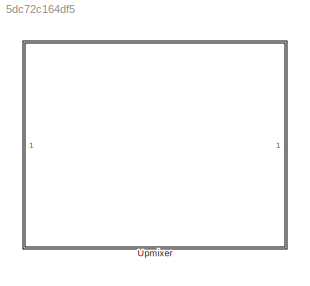
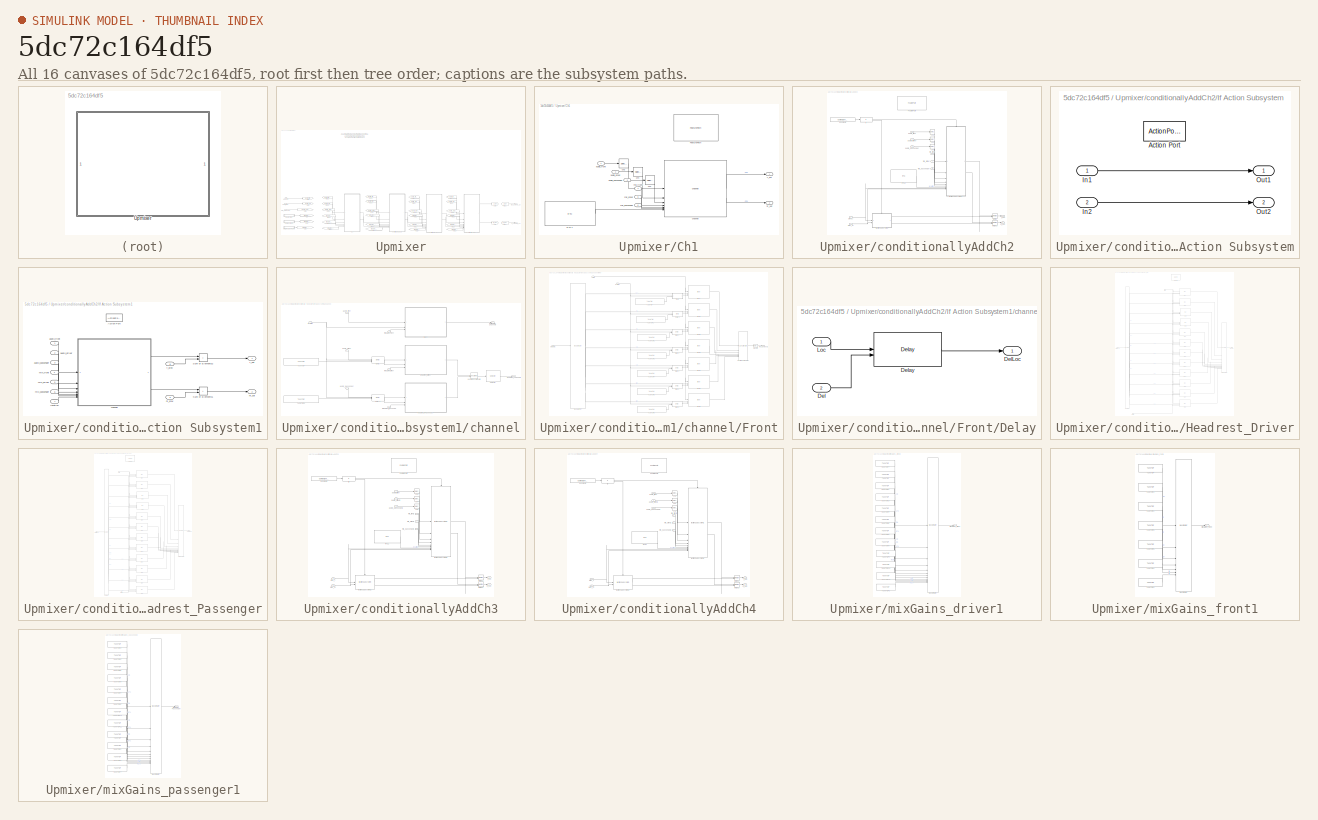
[diagram: thumbnail index - all 16 canvases of the model, root first then tree order]
MODEL slx_5dc72c164df5
KIND library
CONFIG AbsTol = auto
CONFIG EnableMultiTasking = off
CONFIG FixedStep = auto
CONFIG MaxStep = auto
CONFIG MinStep = auto
CONFIG RelTol = 1e-3
CONFIG SampleTimeConstraint = Unconstrained
CONFIG SolverName = VariableStepAuto
CONFIG StartTime = 0.0
CONFIG StopTime = 10.0
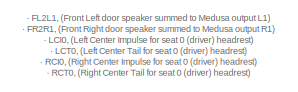
[diagram: Upmixer - part 1/4, top left region]
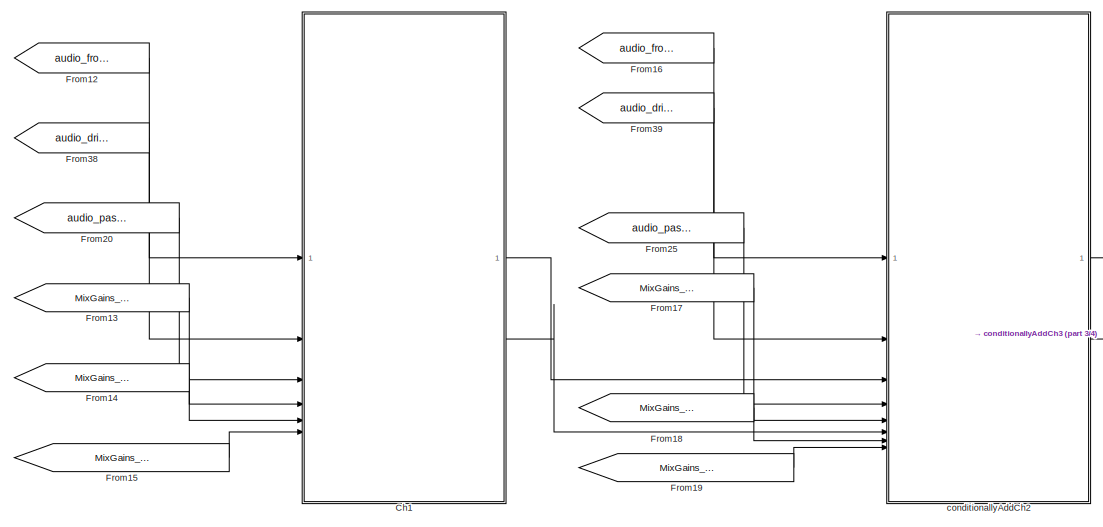
[diagram: Upmixer - part 2/4, bottom center region]
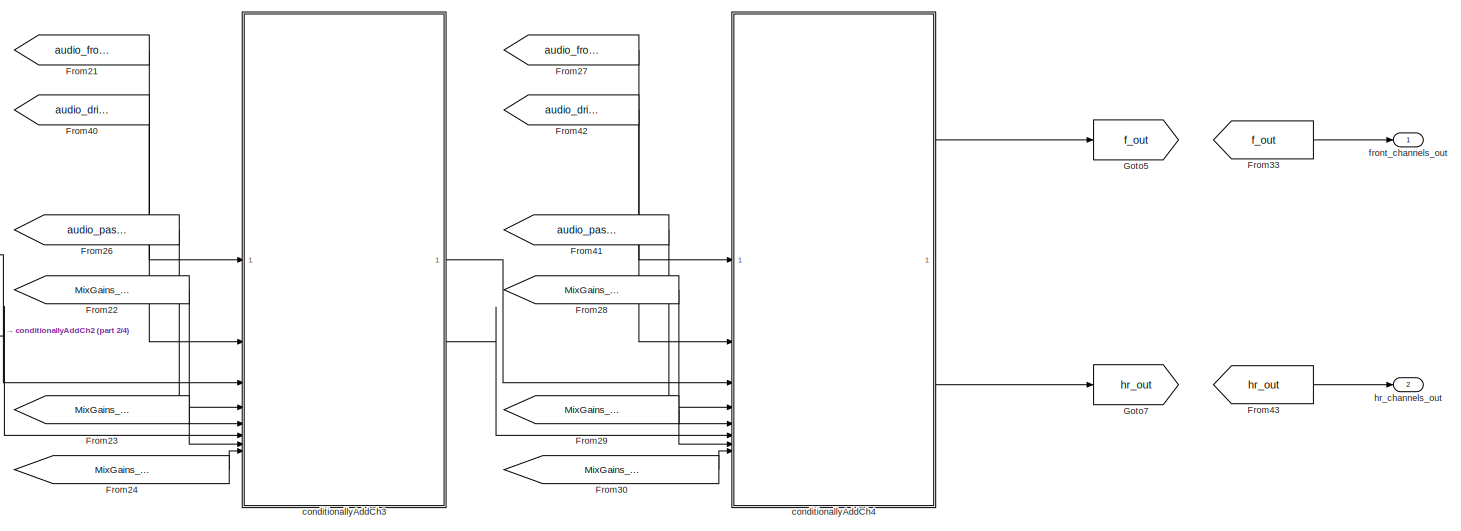
[diagram: Upmixer - part 3/4, bottom right region]
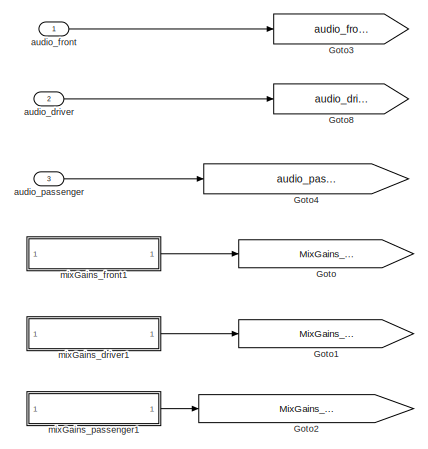
[diagram: Upmixer - part 4/4, bottom left region]
BLOCK [SubSystem] Upmixer
  InitFcn = upmixer.front_peripheral_channel_count = min(upmixer.front_peripheral_channel_count, 7);\nupmixer.front_peripheral_channel_count = max(upmixer.front_peripheral_channel_count, 2);\nupmixer.headrest_count = min(upmixer.headrest_count, 2);\nupmixer.headrest_count = max(upmixer.headrest_count, 1);
BLOCK [SubSystem] Upmixer/Ch1
BLOCK [Reference] Upmixer/Ch1/FeaturePath  REF=FeaturePath/FeaturePath
  SourceBlock = FeaturePath/FeaturePath
  SourceType = Bose Feature Path
BLOCK [Reference] Upmixer/Ch1/RTC1  REF=RTC/RTC
  SourceBlock = RTC/RTC
  SourceType = Bose RTC Receive
BLOCK [Inport] Upmixer/Ch1/audio_driver
  Port = 2
BLOCK [Inport] Upmixer/Ch1/audio_front
BLOCK [Inport] Upmixer/Ch1/audio_passenger
  Port = 3
BLOCK [Selector] Upmixer/Ch1/ch1
  IndexOptions = Select all,Index vector (dialog)
  Indices = 4,min(1, upmixer.ann_sysin_channel_count)
  InputPortWidth = 3
  NumberOfDimensions = 2
  OutputSizes = 1,1
BLOCK [Selector] Upmixer/Ch1/ch3
  IndexOptions = Select all,Index vector (dialog)
  Indices = 4,min(1, upmixer.ann_sysin_channel_count)
  InputPortWidth = 3
  NumberOfDimensions = 2
  OutputSizes = 1,1
BLOCK [Selector] Upmixer/Ch1/ch4
  IndexOptions = Select all,Index vector (dialog)
  Indices = 4,min(1, upmixer.ann_sysin_channel_count)
  InputPortWidth = 3
  NumberOfDimensions = 2
  OutputSizes = 1,1
BLOCK [Reference] Upmixer/Ch1/channel  REF=$bdroot/Upmixer/conditionallyAddCh2/If Action
Subsystem1/channel
  SourceBlock = $bdroot/Upmixer/conditionallyAddCh2/If Action\nSubsystem1/channel
  SourceType = SubSystem
BLOCK [Outport] Upmixer/Ch1/f_out
  VectorParamsAs1DForOutWhenUnconnected = off
BLOCK [Outport] Upmixer/Ch1/hr_out
  Port = 2
  VectorParamsAs1DForOutWhenUnconnected = off
BLOCK [Inport] Upmixer/Ch1/mix_driver
  Port = 5
BLOCK [Inport] Upmixer/Ch1/mix_front
  Port = 4
BLOCK [Inport] Upmixer/Ch1/mix_passenger
  Port = 6
BLOCK [From] Upmixer/From12
  GotoTag = audio_front
BLOCK [From] Upmixer/From13
  GotoTag = MixGains_Front
BLOCK [From] Upmixer/From14
  GotoTag = MixGains_Driver
BLOCK [From] Upmixer/From15
  GotoTag = MixGains_Passenger
BLOCK [From] Upmixer/From16
  GotoTag = audio_front
BLOCK [From] Upmixer/From17
  GotoTag = MixGains_Front
BLOCK [From] Upmixer/From18
  GotoTag = MixGains_Driver
BLOCK [From] Upmixer/From19
  GotoTag = MixGains_Passenger
BLOCK [From] Upmixer/From20
  GotoTag = audio_passenger
BLOCK [From] Upmixer/From21
  GotoTag = audio_front
BLOCK [From] Upmixer/From22
  GotoTag = MixGains_Front
BLOCK [From] Upmixer/From23
  GotoTag = MixGains_Driver
BLOCK [From] Upmixer/From24
  GotoTag = MixGains_Passenger
BLOCK [From] Upmixer/From25
  GotoTag = audio_passenger
BLOCK [From] Upmixer/From26
  GotoTag = audio_passenger
BLOCK [From] Upmixer/From27
  GotoTag = audio_front
BLOCK [From] Upmixer/From28
  GotoTag = MixGains_Front
BLOCK [From] Upmixer/From29
  GotoTag = MixGains_Driver
BLOCK [From] Upmixer/From30
  GotoTag = MixGains_Passenger
BLOCK [From] Upmixer/From33
  GotoTag = f_out
BLOCK [From] Upmixer/From38
  GotoTag = audio_driver
BLOCK [From] Upmixer/From39
  GotoTag = audio_driver
BLOCK [From] Upmixer/From40
  GotoTag = audio_driver
BLOCK [From] Upmixer/From41
  GotoTag = audio_passenger
BLOCK [From] Upmixer/From42
  GotoTag = audio_driver
BLOCK [From] Upmixer/From43
  GotoTag = hr_out
BLOCK [Goto] Upmixer/Goto
  GotoTag = MixGains_Front
BLOCK [Goto] Upmixer/Goto1
  GotoTag = MixGains_Driver
BLOCK [Goto] Upmixer/Goto2
  GotoTag = MixGains_Passenger
BLOCK [Goto] Upmixer/Goto3
  GotoTag = audio_front
BLOCK [Goto] Upmixer/Goto4
  GotoTag = audio_passenger
BLOCK [Goto] Upmixer/Goto5
  GotoTag = f_out
BLOCK [Goto] Upmixer/Goto7
  GotoTag = hr_out
BLOCK [Goto] Upmixer/Goto8
  GotoTag = audio_driver
BLOCK [Inport] Upmixer/audio_driver
  Port = 2
BLOCK [Inport] Upmixer/audio_front
BLOCK [Inport] Upmixer/audio_passenger
  Port = 3
BLOCK [SubSystem] Upmixer/conditionallyAddCh2
BLOCK [Constant] Upmixer/conditionallyAddCh2/Constant2
  Value = upmixer.ann_sysin_channel_count
BLOCK [Reference] Upmixer/conditionallyAddCh2/FeaturePath  REF=FeaturePath/FeaturePath
  SourceBlock = FeaturePath/FeaturePath
  SourceType = Bose Feature Path
BLOCK [If] Upmixer/conditionallyAddCh2/If
  IfExpression = u1 > 1
BLOCK [SubSystem] Upmixer/conditionallyAddCh2/If Action Subsystem
  TreatAsAtomicUnit = on
BLOCK [ActionPort] Upmixer/conditionallyAddCh2/If Action Subsystem/Action Port
  ActionPortLabel = else { }
BLOCK [Inport] Upmixer/conditionallyAddCh2/If Action Subsystem/In1
BLOCK [Inport] Upmixer/conditionallyAddCh2/If Action Subsystem/In2
  Port = 2
BLOCK [Outport] Upmixer/conditionallyAddCh2/If Action Subsystem/Out1
  VectorParamsAs1DForOutWhenUnconnected = off
BLOCK [Outport] Upmixer/conditionallyAddCh2/If Action Subsystem/Out2
  Port = 2
  VectorParamsAs1DForOutWhenUnconnected = off
BLOCK [SubSystem] Upmixer/conditionallyAddCh2/If Action Subsystem1
  TreatAsAtomicUnit = on
BLOCK [ActionPort] Upmixer/conditionallyAddCh2/If Action Subsystem1/Action Port
  ActionPortLabel = if { }
BLOCK [Sum] Upmixer/conditionallyAddCh2/If Action Subsystem1/Sum of Elements1
  CollapseDim = 2
  CollapseMode = Specified dimension
  IconShape = rectangular
BLOCK [Sum] Upmixer/conditionallyAddCh2/If Action Subsystem1/Sum of Elements2
  CollapseDim = 2
  CollapseMode = Specified dimension
  IconShape = rectangular
BLOCK [Inport] Upmixer/conditionallyAddCh2/If Action Subsystem1/audio_driver
  Port = 2
BLOCK [Inport] Upmixer/conditionallyAddCh2/If Action Subsystem1/audio_front
BLOCK [Inport] Upmixer/conditionallyAddCh2/If Action Subsystem1/audio_passenger
  Port = 3
BLOCK [SubSystem] Upmixer/conditionallyAddCh2/If Action Subsystem1/channel
BLOCK [Reference] Upmixer/conditionallyAddCh2/If Action Subsystem1/channel/Delay  REF=$bdroot/Upmixer/conditionallyAddCh2/If Action
Subsystem1/channel/Front/Delay
  SourceBlock = $bdroot/Upmixer/conditionallyAddCh2/If Action\nSubsystem1/channel/Front/Delay
  SourceType = SubSystem
BLOCK [Reference] Upmixer/conditionallyAddCh2/If Action Subsystem1/channel/Delay1  REF=$bdroot/Upmixer/conditionallyAddCh2/If Action
Subsystem1/channel/Front/Delay
  SourceBlock = $bdroot/Upmixer/conditionallyAddCh2/If Action\nSubsystem1/channel/Front/Delay
  SourceType = SubSystem
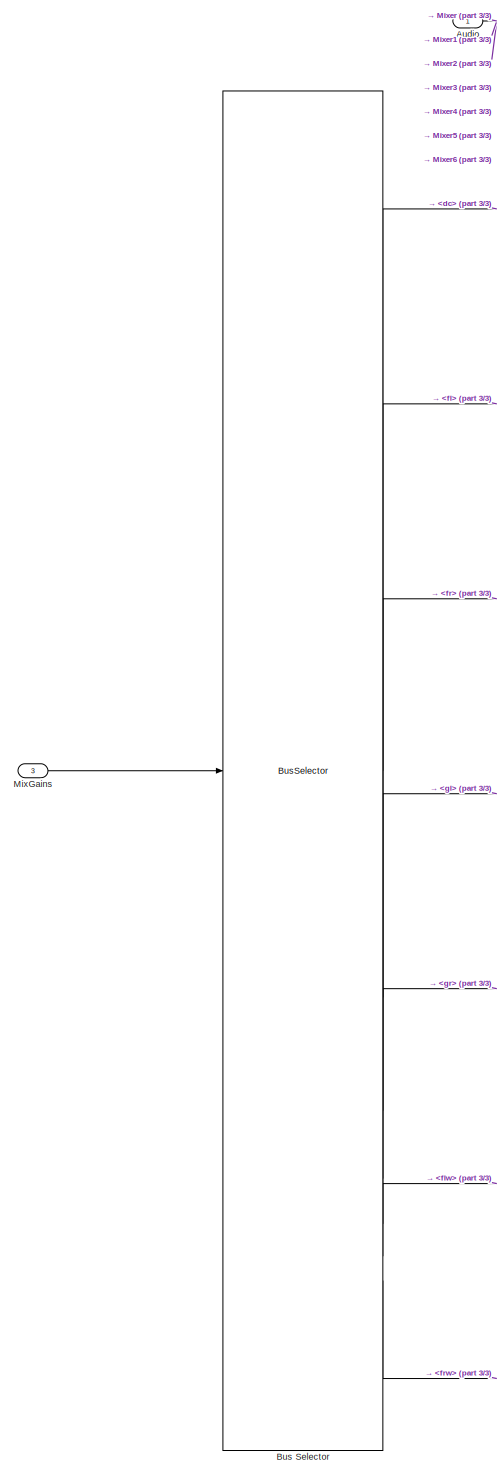
[diagram: Upmixer/conditionallyAddCh2/If Action Subsystem1/channel/Front - part 1/3, left side, full height]
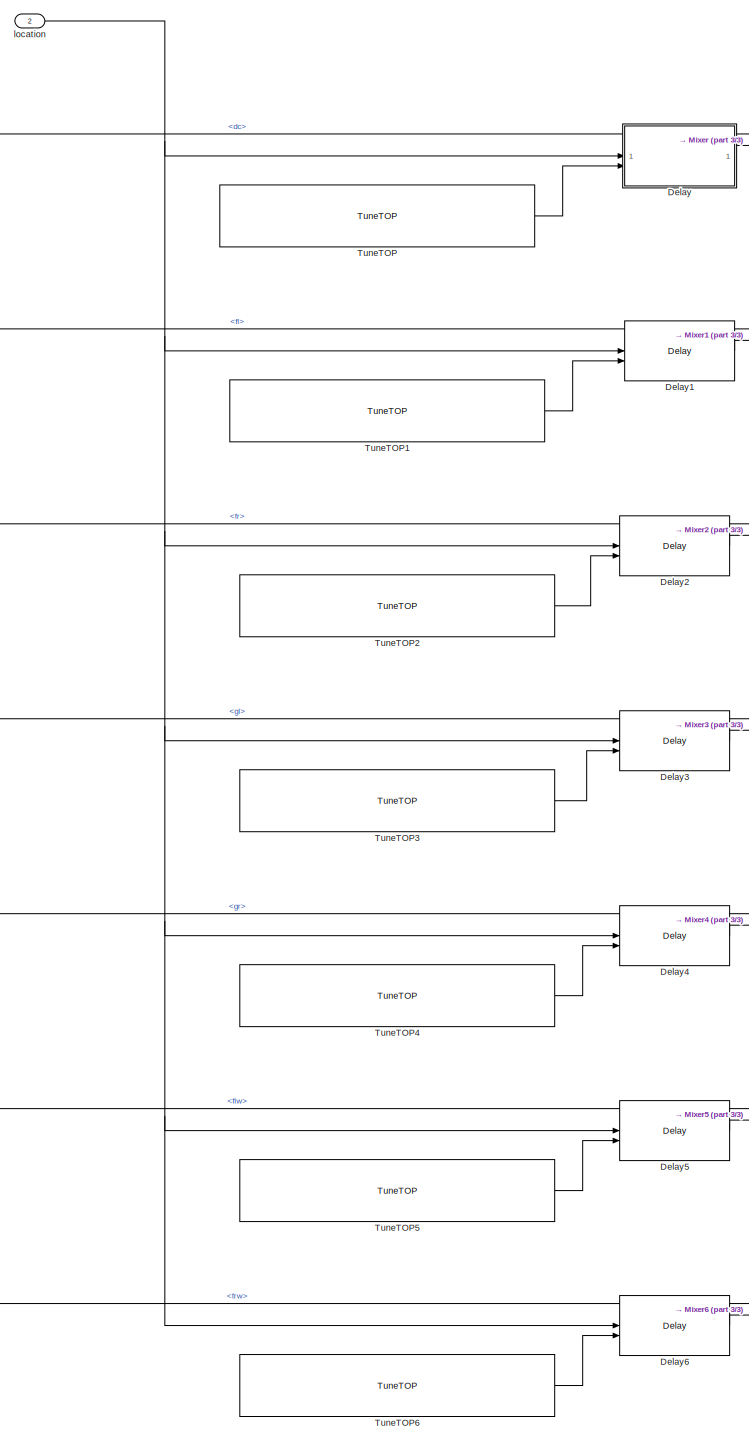
[diagram: Upmixer/conditionallyAddCh2/If Action Subsystem1/channel/Front - part 2/3, center side, full height]
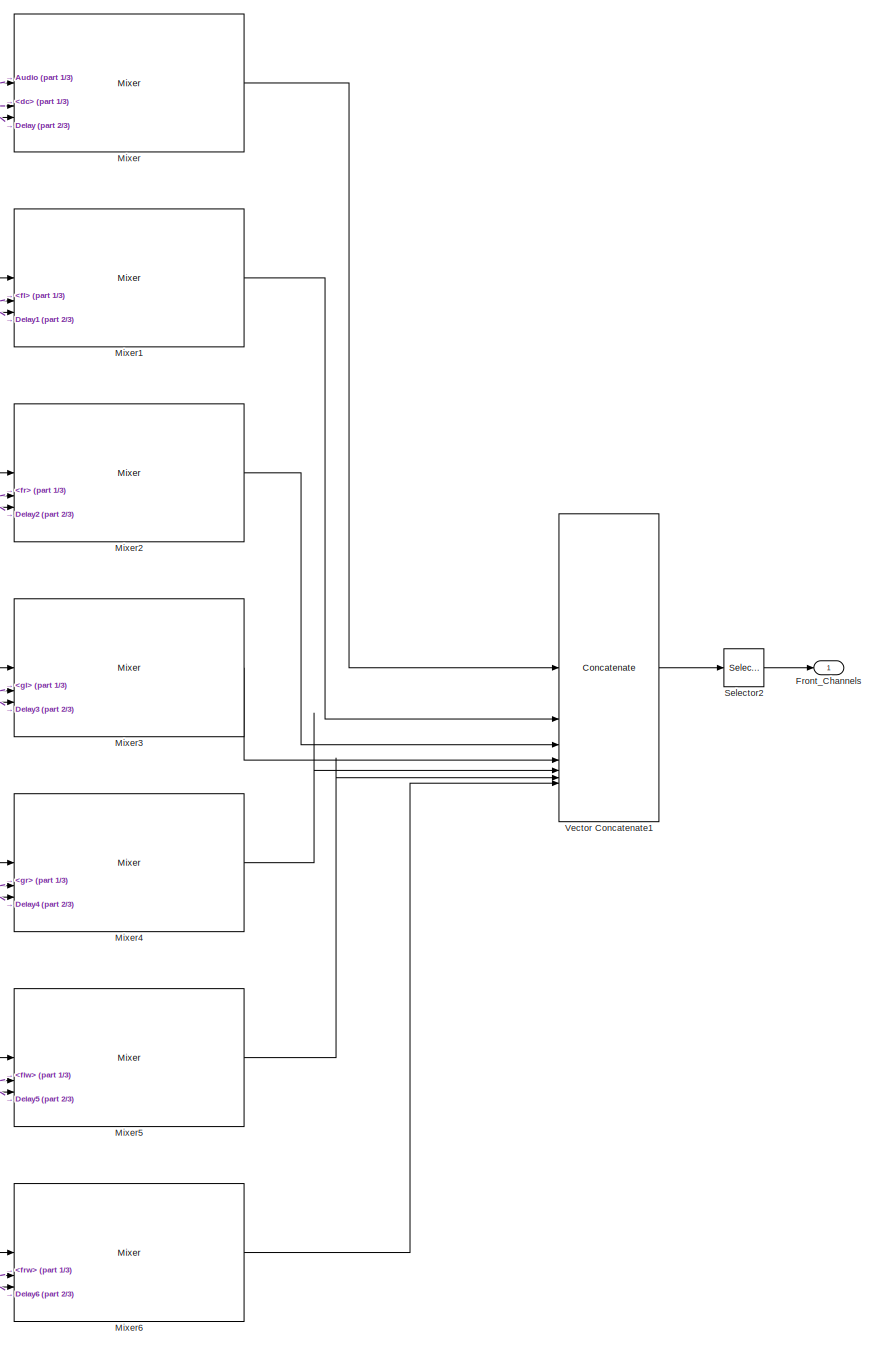
[diagram: Upmixer/conditionallyAddCh2/If Action Subsystem1/channel/Front - part 3/3, right side, full height]
BLOCK [SubSystem] Upmixer/conditionallyAddCh2/If Action Subsystem1/channel/Front
BLOCK [Inport] Upmixer/conditionallyAddCh2/If Action Subsystem1/channel/Front/Audio
BLOCK [BusSelector] Upmixer/conditionallyAddCh2/If Action Subsystem1/channel/Front/Bus Selector
  OutputSignals = dc,fl,fr,gl,gr,flw,frw
BLOCK [SubSystem] Upmixer/conditionallyAddCh2/If Action Subsystem1/channel/Front/Delay
  TreatAsAtomicUnit = on
BLOCK [Inport] Upmixer/conditionallyAddCh2/If Action Subsystem1/channel/Front/Delay/Del
  Port = 2
BLOCK [Outport] Upmixer/conditionallyAddCh2/If Action Subsystem1/channel/Front/Delay/DelLoc
BLOCK [Delay] Upmixer/conditionallyAddCh2/If Action Subsystem1/channel/Front/Delay/Delay
  DelayLengthSource = Input port
  DelayLengthUpperLimit = 3
  InputPortMap = u0,p1
  InputProcessing = Columns as channels (frame based)
BLOCK [Inport] Upmixer/conditionallyAddCh2/If Action Subsystem1/channel/Front/Delay/Loc
BLOCK [Reference] Upmixer/conditionallyAddCh2/If Action Subsystem1/channel/Front/Delay1  REF=$bdroot/Upmixer/conditionallyAddCh2/If Action
Subsystem1/channel/Front/Delay
  SourceBlock = $bdroot/Upmixer/conditionallyAddCh2/If Action\nSubsystem1/channel/Front/Delay
  SourceType = SubSystem
BLOCK [Reference] Upmixer/conditionallyAddCh2/If Action Subsystem1/channel/Front/Delay2  REF=$bdroot/Upmixer/conditionallyAddCh2/If Action
Subsystem1/channel/Front/Delay
  SourceBlock = $bdroot/Upmixer/conditionallyAddCh2/If Action\nSubsystem1/channel/Front/Delay
  SourceType = SubSystem
BLOCK [Reference] Upmixer/conditionallyAddCh2/If Action Subsystem1/channel/Front/Delay3  REF=$bdroot/Upmixer/conditionallyAddCh2/If Action
Subsystem1/channel/Front/Delay
  SourceBlock = $bdroot/Upmixer/conditionallyAddCh2/If Action\nSubsystem1/channel/Front/Delay
  SourceType = SubSystem
BLOCK [Reference] Upmixer/conditionallyAddCh2/If Action Subsystem1/channel/Front/Delay4  REF=$bdroot/Upmixer/conditionallyAddCh2/If Action
Subsystem1/channel/Front/Delay
  SourceBlock = $bdroot/Upmixer/conditionallyAddCh2/If Action\nSubsystem1/channel/Front/Delay
  SourceType = SubSystem
BLOCK [Reference] Upmixer/conditionallyAddCh2/If Action Subsystem1/channel/Front/Delay5  REF=$bdroot/Upmixer/conditionallyAddCh2/If Action
Subsystem1/channel/Front/Delay
  SourceBlock = $bdroot/Upmixer/conditionallyAddCh2/If Action\nSubsystem1/channel/Front/Delay
  SourceType = SubSystem
BLOCK [Reference] Upmixer/conditionallyAddCh2/If Action Subsystem1/channel/Front/Delay6  REF=$bdroot/Upmixer/conditionallyAddCh2/If Action
Subsystem1/channel/Front/Delay
  SourceBlock = $bdroot/Upmixer/conditionallyAddCh2/If Action\nSubsystem1/channel/Front/Delay
  SourceType = SubSystem
BLOCK [Outport] Upmixer/conditionallyAddCh2/If Action Subsystem1/channel/Front/Front_Channels
  VectorParamsAs1DForOutWhenUnconnected = off
BLOCK [Inport] Upmixer/conditionallyAddCh2/If Action Subsystem1/channel/Front/MixGains
  Port = 3
BLOCK [Reference] Upmixer/conditionallyAddCh2/If Action Subsystem1/channel/Front/Mixer  REF=MixerLib/Mixer
  SourceBlock = MixerLib/Mixer
  SourceType = SubSystem
BLOCK [Reference] Upmixer/conditionallyAddCh2/If Action Subsystem1/channel/Front/Mixer1  REF=MixerLib/Mixer
  SourceBlock = MixerLib/Mixer
  SourceType = SubSystem
BLOCK [Reference] Upmixer/conditionallyAddCh2/If Action Subsystem1/channel/Front/Mixer2  REF=MixerLib/Mixer
  SourceBlock = MixerLib/Mixer
  SourceType = SubSystem
BLOCK [Reference] Upmixer/conditionallyAddCh2/If Action Subsystem1/channel/Front/Mixer3  REF=MixerLib/Mixer
  SourceBlock = MixerLib/Mixer
  SourceType = SubSystem
BLOCK [Reference] Upmixer/conditionallyAddCh2/If Action Subsystem1/channel/Front/Mixer4  REF=MixerLib/Mixer
  SourceBlock = MixerLib/Mixer
  SourceType = SubSystem
BLOCK [Reference] Upmixer/conditionallyAddCh2/If Action Subsystem1/channel/Front/Mixer5  REF=MixerLib/Mixer
  SourceBlock = MixerLib/Mixer
  SourceType = SubSystem
BLOCK [Reference] Upmixer/conditionallyAddCh2/If Action Subsystem1/channel/Front/Mixer6  REF=MixerLib/Mixer
  SourceBlock = MixerLib/Mixer
  SourceType = SubSystem
BLOCK [Selector] Upmixer/conditionallyAddCh2/If Action Subsystem1/channel/Front/Selector2
  IndexOptions = Select all,Index vector (dialog)
  Indices = [1 32],[1:upmixer.front_peripheral_channel_count]
  InputPortWidth = 3
  NumberOfDimensions = 2
  OutputSizes = 1,1
BLOCK [Reference] Upmixer/conditionallyAddCh2/If Action Subsystem1/channel/Front/TuneTOP  REF=TuneVar/TuneTOP
  SourceBlock = TuneVar/TuneTOP
  SourceType = Bose Trivial Tune TOP
BLOCK [Reference] Upmixer/conditionallyAddCh2/If Action Subsystem1/channel/Front/TuneTOP1  REF=TuneVar/TuneTOP
  SourceBlock = TuneVar/TuneTOP
  SourceType = Bose Trivial Tune TOP
BLOCK [Reference] Upmixer/conditionallyAddCh2/If Action Subsystem1/channel/Front/TuneTOP2  REF=TuneVar/TuneTOP
  SourceBlock = TuneVar/TuneTOP
  SourceType = Bose Trivial Tune TOP
BLOCK [Reference] Upmixer/conditionallyAddCh2/If Action Subsystem1/channel/Front/TuneTOP3  REF=TuneVar/TuneTOP
  SourceBlock = TuneVar/TuneTOP
  SourceType = Bose Trivial Tune TOP
BLOCK [Reference] Upmixer/conditionallyAddCh2/If Action Subsystem1/channel/Front/TuneTOP4  REF=TuneVar/TuneTOP
  SourceBlock = TuneVar/TuneTOP
  SourceType = Bose Trivial Tune TOP
BLOCK [Reference] Upmixer/conditionallyAddCh2/If Action Subsystem1/channel/Front/TuneTOP5  REF=TuneVar/TuneTOP
  SourceBlock = TuneVar/TuneTOP
  SourceType = Bose Trivial Tune TOP
BLOCK [Reference] Upmixer/conditionallyAddCh2/If Action Subsystem1/channel/Front/TuneTOP6  REF=TuneVar/TuneTOP
  SourceBlock = TuneVar/TuneTOP
  SourceType = Bose Trivial Tune TOP
BLOCK [Concatenate] Upmixer/conditionallyAddCh2/If Action Subsystem1/channel/Front/Vector Concatenate1
  ConcatenateDimension = 2
  Mode = Multidimensional array
  NumInputs = 7
BLOCK [Inport] Upmixer/conditionallyAddCh2/If Action Subsystem1/channel/Front/location
  Port = 2
BLOCK [SubSystem] Upmixer/conditionallyAddCh2/If Action Subsystem1/channel/Headrest_Driver
BLOCK [Inport] Upmixer/conditionallyAddCh2/If Action Subsystem1/channel/Headrest_Driver/Audio
BLOCK [BusSelector] Upmixer/conditionallyAddCh2/If Action Subsystem1/channel/Headrest_Driver/Bus Selector
  OutputSignals = LFI0,LFT0,RFI0,RFT0,LSI0,LST0,RSI0,RST0,LCI0,LCT0,RCI0,RCT0
BLOCK [Reference] Upmixer/conditionallyAddCh2/If Action Subsystem1/channel/Headrest_Driver/FeaturePath  REF=FeaturePath/FeaturePath
  SourceBlock = FeaturePath/FeaturePath
  SourceType = Bose Feature Path
BLOCK [Outport] Upmixer/conditionallyAddCh2/If Action Subsystem1/channel/Headrest_Driver/HR_Channels
  VectorParamsAs1DForOutWhenUnconnected = off
BLOCK [Inport] Upmixer/conditionallyAddCh2/If Action Subsystem1/channel/Headrest_Driver/MixGains_in
  Port = 3
BLOCK [Reference] Upmixer/conditionallyAddCh2/If Action Subsystem1/channel/Headrest_Driver/Mixer  REF=MixerLib/Mixer
  SourceBlock = MixerLib/Mixer
  SourceType = SubSystem
BLOCK [Reference] Upmixer/conditionallyAddCh2/If Action Subsystem1/channel/Headrest_Driver/Mixer1  REF=MixerLib/Mixer
  SourceBlock = MixerLib/Mixer
  SourceType = SubSystem
BLOCK [Reference] Upmixer/conditionallyAddCh2/If Action Subsystem1/channel/Headrest_Driver/Mixer10  REF=MixerLib/Mixer
  SourceBlock = MixerLib/Mixer
  SourceType = SubSystem
BLOCK [Reference] Upmixer/conditionallyAddCh2/If Action Subsystem1/channel/Headrest_Driver/Mixer11  REF=MixerLib/Mixer
  SourceBlock = MixerLib/Mixer
  SourceType = SubSystem
BLOCK [Reference] Upmixer/conditionallyAddCh2/If Action Subsystem1/channel/Headrest_Driver/Mixer2  REF=MixerLib/Mixer
  SourceBlock = MixerLib/Mixer
  SourceType = SubSystem
BLOCK [Reference] Upmixer/conditionallyAddCh2/If Action Subsystem1/channel/Headrest_Driver/Mixer3  REF=MixerLib/Mixer
  SourceBlock = MixerLib/Mixer
  SourceType = SubSystem
BLOCK [Reference] Upmixer/conditionallyAddCh2/If Action Subsystem1/channel/Headrest_Driver/Mixer4  REF=MixerLib/Mixer
  SourceBlock = MixerLib/Mixer
  SourceType = SubSystem
BLOCK [Reference] Upmixer/conditionallyAddCh2/If Action Subsystem1/channel/Headrest_Driver/Mixer5  REF=MixerLib/Mixer
  SourceBlock = MixerLib/Mixer
  SourceType = SubSystem
BLOCK [Reference] Upmixer/conditionallyAddCh2/If Action Subsystem1/channel/Headrest_Driver/Mixer6  REF=MixerLib/Mixer
  SourceBlock = MixerLib/Mixer
  SourceType = SubSystem
BLOCK [Reference] Upmixer/conditionallyAddCh2/If Action Subsystem1/channel/Headrest_Driver/Mixer7  REF=MixerLib/Mixer
  SourceBlock = MixerLib/Mixer
  SourceType = SubSystem
BLOCK [Reference] Upmixer/conditionallyAddCh2/If Action Subsystem1/channel/Headrest_Driver/Mixer8  REF=MixerLib/Mixer
  SourceBlock = MixerLib/Mixer
  SourceType = SubSystem
BLOCK [Reference] Upmixer/conditionallyAddCh2/If Action Subsystem1/channel/Headrest_Driver/Mixer9  REF=MixerLib/Mixer
  SourceBlock = MixerLib/Mixer
  SourceType = SubSystem
BLOCK [Concatenate] Upmixer/conditionallyAddCh2/If Action Subsystem1/channel/Headrest_Driver/Vector Concatenate
  ConcatenateDimension = 2
  Mode = Multidimensional array
  NumInputs = 12
BLOCK [Inport] Upmixer/conditionallyAddCh2/If Action Subsystem1/channel/Headrest_Driver/location
  Port = 2
BLOCK [SubSystem] Upmixer/conditionallyAddCh2/If Action Subsystem1/channel/Headrest_Passenger
BLOCK [Inport] Upmixer/conditionallyAddCh2/If Action Subsystem1/channel/Headrest_Passenger/Audio
BLOCK [BusSelector] Upmixer/conditionallyAddCh2/If Action Subsystem1/channel/Headrest_Passenger/Bus Selector
  OutputSignals = LCI1,LCT1,LFI1,LFT1,LSI1,LST1,RCI1,RCT1,RFI1,RFT1,RSI1,RST1
BLOCK [Reference] Upmixer/conditionallyAddCh2/If Action Subsystem1/channel/Headrest_Passenger/FeaturePath  REF=FeaturePath/FeaturePath
  SourceBlock = FeaturePath/FeaturePath
  SourceType = Bose Feature Path
BLOCK [Outport] Upmixer/conditionallyAddCh2/If Action Subsystem1/channel/Headrest_Passenger/HR_Channels
  VectorParamsAs1DForOutWhenUnconnected = off
BLOCK [Inport] Upmixer/conditionallyAddCh2/If Action Subsystem1/channel/Headrest_Passenger/MixGains_in
  Port = 3
BLOCK [Reference] Upmixer/conditionallyAddCh2/If Action Subsystem1/channel/Headrest_Passenger/Mixer  REF=MixerLib/Mixer
  SourceBlock = MixerLib/Mixer
  SourceType = SubSystem
BLOCK [Reference] Upmixer/conditionallyAddCh2/If Action Subsystem1/channel/Headrest_Passenger/Mixer1  REF=MixerLib/Mixer
  SourceBlock = MixerLib/Mixer
  SourceType = SubSystem
BLOCK [Reference] Upmixer/conditionallyAddCh2/If Action Subsystem1/channel/Headrest_Passenger/Mixer10  REF=MixerLib/Mixer
  SourceBlock = MixerLib/Mixer
  SourceType = SubSystem
BLOCK [Reference] Upmixer/conditionallyAddCh2/If Action Subsystem1/channel/Headrest_Passenger/Mixer11  REF=MixerLib/Mixer
  SourceBlock = MixerLib/Mixer
  SourceType = SubSystem
BLOCK [Reference] Upmixer/conditionallyAddCh2/If Action Subsystem1/channel/Headrest_Passenger/Mixer2  REF=MixerLib/Mixer
  SourceBlock = MixerLib/Mixer
  SourceType = SubSystem
BLOCK [Reference] Upmixer/conditionallyAddCh2/If Action Subsystem1/channel/Headrest_Passenger/Mixer3  REF=MixerLib/Mixer
  SourceBlock = MixerLib/Mixer
  SourceType = SubSystem
BLOCK [Reference] Upmixer/conditionallyAddCh2/If Action Subsystem1/channel/Headrest_Passenger/Mixer4  REF=MixerLib/Mixer
  SourceBlock = MixerLib/Mixer
  SourceType = SubSystem
BLOCK [Reference] Upmixer/conditionallyAddCh2/If Action Subsystem1/channel/Headrest_Passenger/Mixer5  REF=MixerLib/Mixer
  SourceBlock = MixerLib/Mixer
  SourceType = SubSystem
BLOCK [Reference] Upmixer/conditionallyAddCh2/If Action Subsystem1/channel/Headrest_Passenger/Mixer6  REF=MixerLib/Mixer
  SourceBlock = MixerLib/Mixer
  SourceType = SubSystem
BLOCK [Reference] Upmixer/conditionallyAddCh2/If Action Subsystem1/channel/Headrest_Passenger/Mixer7  REF=MixerLib/Mixer
  SourceBlock = MixerLib/Mixer
  SourceType = SubSystem
BLOCK [Reference] Upmixer/conditionallyAddCh2/If Action Subsystem1/channel/Headrest_Passenger/Mixer8  REF=MixerLib/Mixer
  SourceBlock = MixerLib/Mixer
  SourceType = SubSystem
BLOCK [Reference] Upmixer/conditionallyAddCh2/If Action Subsystem1/channel/Headrest_Passenger/Mixer9  REF=MixerLib/Mixer
  SourceBlock = MixerLib/Mixer
  SourceType = SubSystem
BLOCK [Concatenate] Upmixer/conditionallyAddCh2/If Action Subsystem1/channel/Headrest_Passenger/Vector Concatenate
  ConcatenateDimension = 2
  Mode = Multidimensional array
  NumInputs = 12
BLOCK [Inport] Upmixer/conditionallyAddCh2/If Action Subsystem1/channel/Headrest_Passenger/location
  Port = 2
BLOCK [Outport] Upmixer/conditionallyAddCh2/If Action Subsystem1/channel/Headrest_channels
  Port = 2
  VectorParamsAs1DForOutWhenUnconnected = off
BLOCK [Outport] Upmixer/conditionallyAddCh2/If Action Subsystem1/channel/Peripheral_Channels
BLOCK [Selector] Upmixer/conditionallyAddCh2/If Action Subsystem1/channel/Selector
  IndexOptions = Select all,Index vector (dialog)
  Indices = [1 3],[1:(12*upmixer.headrest_count)]
  InputPortWidth = 3
  NumberOfDimensions = 2
  OutputSizes = 1,1
BLOCK [Reference] Upmixer/conditionallyAddCh2/If Action Subsystem1/channel/TuneTOP  REF=TuneVar/TuneTOP
  SourceBlock = TuneVar/TuneTOP
  SourceType = Bose Trivial Tune TOP
BLOCK [Reference] Upmixer/conditionallyAddCh2/If Action Subsystem1/channel/TuneTOP1  REF=TuneVar/TuneTOP
  SourceBlock = TuneVar/TuneTOP
  SourceType = Bose Trivial Tune TOP
BLOCK [Concatenate] Upmixer/conditionallyAddCh2/If Action Subsystem1/channel/Vector Concatenate
  ConcatenateDimension = 2
  Mode = Multidimensional array
BLOCK [Inport] Upmixer/conditionallyAddCh2/If Action Subsystem1/channel/audio_driver
  Port = 2
BLOCK [Inport] Upmixer/conditionallyAddCh2/If Action Subsystem1/channel/audio_front
BLOCK [Inport] Upmixer/conditionallyAddCh2/If Action Subsystem1/channel/audio_passenger
  Port = 3
BLOCK [Inport] Upmixer/conditionallyAddCh2/If Action Subsystem1/channel/location
  Port = 7
BLOCK [Inport] Upmixer/conditionallyAddCh2/If Action Subsystem1/channel/mixGainsDriver
  Port = 5
BLOCK [Inport] Upmixer/conditionallyAddCh2/If Action Subsystem1/channel/mixGainsFront
  Port = 4
BLOCK [Inport] Upmixer/conditionallyAddCh2/If Action Subsystem1/channel/mixGainsPassenger
  Port = 6
BLOCK [Outport] Upmixer/conditionallyAddCh2/If Action Subsystem1/f_out
  VectorParamsAs1DForOutWhenUnconnected = off
BLOCK [Inport] Upmixer/conditionallyAddCh2/If Action Subsystem1/f_prev
  Port = 8
BLOCK [Outport] Upmixer/conditionallyAddCh2/If Action Subsystem1/hr_out
  Port = 2
  VectorParamsAs1DForOutWhenUnconnected = off
BLOCK [Inport] Upmixer/conditionallyAddCh2/If Action Subsystem1/hr_prev
  Port = 9
BLOCK [Inport] Upmixer/conditionallyAddCh2/If Action Subsystem1/location
  Port = 7
BLOCK [Inport] Upmixer/conditionallyAddCh2/If Action Subsystem1/mix_driver
  Port = 5
BLOCK [Inport] Upmixer/conditionallyAddCh2/If Action Subsystem1/mix_front
  Port = 4
BLOCK [Inport] Upmixer/conditionallyAddCh2/If Action Subsystem1/mix_passenger
  Port = 6
BLOCK [Merge] Upmixer/conditionallyAddCh2/Merge
BLOCK [Merge] Upmixer/conditionallyAddCh2/Merge1
BLOCK [Reference] Upmixer/conditionallyAddCh2/RTC1  REF=RTC/RTC
  SourceBlock = RTC/RTC
  SourceType = Bose RTC Receive
BLOCK [Inport] Upmixer/conditionallyAddCh2/audio_driver
  Port = 2
BLOCK [Inport] Upmixer/conditionallyAddCh2/audio_front
BLOCK [Inport] Upmixer/conditionallyAddCh2/audio_passenger
  Port = 4
BLOCK [Selector] Upmixer/conditionallyAddCh2/ch3
  IndexOptions = Select all,Index vector (dialog)
  Indices = 4,min(2, upmixer.ann_sysin_channel_count)
  InputPortWidth = 3
  NumberOfDimensions = 2
  OutputSizes = 1,1
BLOCK [Selector] Upmixer/conditionallyAddCh2/ch4
  IndexOptions = Select all,Index vector (dialog)
  Indices = 4,min(2, upmixer.ann_sysin_channel_count)
  InputPortWidth = 3
  NumberOfDimensions = 2
  OutputSizes = 1,1
BLOCK [Selector] Upmixer/conditionallyAddCh2/ch5
  IndexOptions = Select all,Index vector (dialog)
  Indices = 4,min(2, upmixer.ann_sysin_channel_count)
  InputPortWidth = 3
  NumberOfDimensions = 2
  OutputSizes = 1,1
BLOCK [Outport] Upmixer/conditionallyAddCh2/f_out
  VectorParamsAs1DForOutWhenUnconnected = off
BLOCK [Outport] Upmixer/conditionallyAddCh2/hr_out
  Port = 2
  VectorParamsAs1DForOutWhenUnconnected = off
BLOCK [Inport] Upmixer/conditionallyAddCh2/mix_driver
  Port = 7
BLOCK [Inport] Upmixer/conditionallyAddCh2/mix_front
  Port = 5
BLOCK [Inport] Upmixer/conditionallyAddCh2/mix_passenger
  Port = 8
BLOCK [Inport] Upmixer/conditionallyAddCh2/prev_f
  Port = 3
BLOCK [Inport] Upmixer/conditionallyAddCh2/prev_hr
  Port = 6
BLOCK [SubSystem] Upmixer/conditionallyAddCh3
  AncestorBlock = UpmixerLib/Upmixer/conditionallyAddCh2
  LibrarySourceBlock = UpmixerLib/Upmixer/conditionallyAddCh2
BLOCK [Constant] Upmixer/conditionallyAddCh3/Constant2
  Value = upmixer.ann_sysin_channel_count
BLOCK [Reference] Upmixer/conditionallyAddCh3/FeaturePath  REF=FeaturePath/FeaturePath
  SourceBlock = FeaturePath/FeaturePath
  SourceType = Bose Feature Path
BLOCK [Reference] Upmixer/conditionallyAddCh3/If Action Subsystem2  REF=$bdroot/Upmixer/conditionallyAddCh2/If Action
Subsystem
  SourceBlock = $bdroot/Upmixer/conditionallyAddCh2/If Action\nSubsystem
  SourceType = SubSystem
BLOCK [Reference] Upmixer/conditionallyAddCh3/If Action Subsystem3  REF=$bdroot/Upmixer/conditionallyAddCh2/If Action
Subsystem1
  SourceBlock = $bdroot/Upmixer/conditionallyAddCh2/If Action\nSubsystem1
  SourceType = SubSystem
BLOCK [If] Upmixer/conditionallyAddCh3/If2
  IfExpression = u1 > 2
BLOCK [Merge] Upmixer/conditionallyAddCh3/Merge1
BLOCK [Merge] Upmixer/conditionallyAddCh3/Merge2
BLOCK [Reference] Upmixer/conditionallyAddCh3/RTC1  REF=RTC/RTC
  SourceBlock = RTC/RTC
  SourceType = Bose RTC Receive
BLOCK [Inport] Upmixer/conditionallyAddCh3/audio_driver1
  Port = 2
BLOCK [Inport] Upmixer/conditionallyAddCh3/audio_front
BLOCK [Inport] Upmixer/conditionallyAddCh3/audio_passenger1
  Port = 4
BLOCK [Selector] Upmixer/conditionallyAddCh3/ch3
  IndexOptions = Select all,Index vector (dialog)
  Indices = 4,min(3, upmixer.ann_sysin_channel_count)
  InputPortWidth = 3
  NumberOfDimensions = 2
  OutputSizes = 1,1
BLOCK [Selector] Upmixer/conditionallyAddCh3/ch4
  IndexOptions = Select all,Index vector (dialog)
  Indices = 4,min(3, upmixer.ann_sysin_channel_count)
  InputPortWidth = 3
  NumberOfDimensions = 2
  OutputSizes = 1,1
BLOCK [Selector] Upmixer/conditionallyAddCh3/ch5
  IndexOptions = Select all,Index vector (dialog)
  Indices = 4,min(3, upmixer.ann_sysin_channel_count)
  InputPortWidth = 3
  NumberOfDimensions = 2
  OutputSizes = 1,1
BLOCK [Outport] Upmixer/conditionallyAddCh3/f_out
  VectorParamsAs1DForOutWhenUnconnected = off
BLOCK [Outport] Upmixer/conditionallyAddCh3/hr_out
  Port = 2
  VectorParamsAs1DForOutWhenUnconnected = off
BLOCK [Inport] Upmixer/conditionallyAddCh3/mix_driver1
  Port = 7
BLOCK [Inport] Upmixer/conditionallyAddCh3/mix_front1
  Port = 5
BLOCK [Inport] Upmixer/conditionallyAddCh3/mix_passenger1
  Port = 8
BLOCK [Inport] Upmixer/conditionallyAddCh3/prev_f
  Port = 3
BLOCK [Inport] Upmixer/conditionallyAddCh3/prev_hr
  Port = 6
BLOCK [SubSystem] Upmixer/conditionallyAddCh4
  AncestorBlock = UpmixerLib/Upmixer/conditionallyAddCh2
  LibrarySourceBlock = UpmixerLib/Upmixer/conditionallyAddCh2
BLOCK [Constant] Upmixer/conditionallyAddCh4/Constant2
  Value = upmixer.ann_sysin_channel_count
BLOCK [Reference] Upmixer/conditionallyAddCh4/FeaturePath  REF=FeaturePath/FeaturePath
  SourceBlock = FeaturePath/FeaturePath
  SourceType = Bose Feature Path
BLOCK [Reference] Upmixer/conditionallyAddCh4/If Action Subsystem2  REF=$bdroot/Upmixer/conditionallyAddCh2/If Action
Subsystem
  SourceBlock = $bdroot/Upmixer/conditionallyAddCh2/If Action\nSubsystem
  SourceType = SubSystem
BLOCK [Reference] Upmixer/conditionallyAddCh4/If Action Subsystem3  REF=$bdroot/Upmixer/conditionallyAddCh2/If Action
Subsystem1
  SourceBlock = $bdroot/Upmixer/conditionallyAddCh2/If Action\nSubsystem1
  SourceType = SubSystem
BLOCK [If] Upmixer/conditionallyAddCh4/If2
  IfExpression = u1 > 3
BLOCK [Merge] Upmixer/conditionallyAddCh4/Merge1
BLOCK [Merge] Upmixer/conditionallyAddCh4/Merge2
BLOCK [Reference] Upmixer/conditionallyAddCh4/RTC1  REF=RTC/RTC
  SourceBlock = RTC/RTC
  SourceType = Bose RTC Receive
BLOCK [Inport] Upmixer/conditionallyAddCh4/audio_driver1
  Port = 2
BLOCK [Inport] Upmixer/conditionallyAddCh4/audio_front
BLOCK [Inport] Upmixer/conditionallyAddCh4/audio_passenger1
  Port = 4
BLOCK [Selector] Upmixer/conditionallyAddCh4/ch3
  IndexOptions = Select all,Index vector (dialog)
  Indices = 4,min(4, upmixer.ann_sysin_channel_count)
  InputPortWidth = 3
  NumberOfDimensions = 2
  OutputSizes = 1,1
BLOCK [Selector] Upmixer/conditionallyAddCh4/ch4
  IndexOptions = Select all,Index vector (dialog)
  Indices = 4,min(4, upmixer.ann_sysin_channel_count)
  InputPortWidth = 3
  NumberOfDimensions = 2
  OutputSizes = 1,1
BLOCK [Selector] Upmixer/conditionallyAddCh4/ch5
  IndexOptions = Select all,Index vector (dialog)
  Indices = 4,min(4, upmixer.ann_sysin_channel_count)
  InputPortWidth = 3
  NumberOfDimensions = 2
  OutputSizes = 1,1
BLOCK [Outport] Upmixer/conditionallyAddCh4/f_out
  VectorParamsAs1DForOutWhenUnconnected = off
BLOCK [Outport] Upmixer/conditionallyAddCh4/hr_out
  Port = 2
  VectorParamsAs1DForOutWhenUnconnected = off
BLOCK [Inport] Upmixer/conditionallyAddCh4/mix_driver1
  Port = 7
BLOCK [Inport] Upmixer/conditionallyAddCh4/mix_front1
  Port = 5
BLOCK [Inport] Upmixer/conditionallyAddCh4/mix_passenger1
  Port = 8
BLOCK [Inport] Upmixer/conditionallyAddCh4/prev_f
  Port = 3
BLOCK [Inport] Upmixer/conditionallyAddCh4/prev_hr
  Port = 6
BLOCK [Outport] Upmixer/front_channels_out
  VectorParamsAs1DForOutWhenUnconnected = off
BLOCK [Outport] Upmixer/hr_channels_out
  Port = 2
  VectorParamsAs1DForOutWhenUnconnected = off
BLOCK [SubSystem] Upmixer/mixGains_driver1
BLOCK [BusCreator] Upmixer/mixGains_driver1/Bus Creator
  DisplayOption = bar
  InheritFromInputs = on
  Inputs = 12
BLOCK [Outport] Upmixer/mixGains_driver1/MixGains_Driver
  VectorParamsAs1DForOutWhenUnconnected = off
BLOCK [Reference] Upmixer/mixGains_driver1/TuneTOP  REF=TuneVar/TuneTOP
  SourceBlock = TuneVar/TuneTOP
  SourceType = Bose Trivial Tune TOP
BLOCK [Reference] Upmixer/mixGains_driver1/TuneTOP1  REF=TuneVar/TuneTOP
  SourceBlock = TuneVar/TuneTOP
  SourceType = Bose Trivial Tune TOP
BLOCK [Reference] Upmixer/mixGains_driver1/TuneTOP10  REF=TuneVar/TuneTOP
  SourceBlock = TuneVar/TuneTOP
  SourceType = Bose Trivial Tune TOP
BLOCK [Reference] Upmixer/mixGains_driver1/TuneTOP11  REF=TuneVar/TuneTOP
  SourceBlock = TuneVar/TuneTOP
  SourceType = Bose Trivial Tune TOP
BLOCK [Reference] Upmixer/mixGains_driver1/TuneTOP2  REF=TuneVar/TuneTOP
  SourceBlock = TuneVar/TuneTOP
  SourceType = Bose Trivial Tune TOP
BLOCK [Reference] Upmixer/mixGains_driver1/TuneTOP3  REF=TuneVar/TuneTOP
  SourceBlock = TuneVar/TuneTOP
  SourceType = Bose Trivial Tune TOP
BLOCK [Reference] Upmixer/mixGains_driver1/TuneTOP4  REF=TuneVar/TuneTOP
  SourceBlock = TuneVar/TuneTOP
  SourceType = Bose Trivial Tune TOP
BLOCK [Reference] Upmixer/mixGains_driver1/TuneTOP5  REF=TuneVar/TuneTOP
  SourceBlock = TuneVar/TuneTOP
  SourceType = Bose Trivial Tune TOP
BLOCK [Reference] Upmixer/mixGains_driver1/TuneTOP6  REF=TuneVar/TuneTOP
  SourceBlock = TuneVar/TuneTOP
  SourceType = Bose Trivial Tune TOP
BLOCK [Reference] Upmixer/mixGains_driver1/TuneTOP7  REF=TuneVar/TuneTOP
  SourceBlock = TuneVar/TuneTOP
  SourceType = Bose Trivial Tune TOP
BLOCK [Reference] Upmixer/mixGains_driver1/TuneTOP8  REF=TuneVar/TuneTOP
  SourceBlock = TuneVar/TuneTOP
  SourceType = Bose Trivial Tune TOP
BLOCK [Reference] Upmixer/mixGains_driver1/TuneTOP9  REF=TuneVar/TuneTOP
  SourceBlock = TuneVar/TuneTOP
  SourceType = Bose Trivial Tune TOP
BLOCK [SubSystem] Upmixer/mixGains_front1
BLOCK [BusCreator] Upmixer/mixGains_front1/Bus Creator
  DisplayOption = bar
  InheritFromInputs = on
  Inputs = 7
BLOCK [Outport] Upmixer/mixGains_front1/MixGains_Front
  VectorParamsAs1DForOutWhenUnconnected = off
BLOCK [Reference] Upmixer/mixGains_front1/TuneTOP  REF=TuneVar/TuneTOP
  SourceBlock = TuneVar/TuneTOP
  SourceType = Bose Trivial Tune TOP
BLOCK [Reference] Upmixer/mixGains_front1/TuneTOP1  REF=TuneVar/TuneTOP
  SourceBlock = TuneVar/TuneTOP
  SourceType = Bose Trivial Tune TOP
BLOCK [Reference] Upmixer/mixGains_front1/TuneTOP2  REF=TuneVar/TuneTOP
  SourceBlock = TuneVar/TuneTOP
  SourceType = Bose Trivial Tune TOP
BLOCK [Reference] Upmixer/mixGains_front1/TuneTOP3  REF=TuneVar/TuneTOP
  SourceBlock = TuneVar/TuneTOP
  SourceType = Bose Trivial Tune TOP
BLOCK [Reference] Upmixer/mixGains_front1/TuneTOP4  REF=TuneVar/TuneTOP
  SourceBlock = TuneVar/TuneTOP
  SourceType = Bose Trivial Tune TOP
BLOCK [Reference] Upmixer/mixGains_front1/TuneTOP5  REF=TuneVar/TuneTOP
  SourceBlock = TuneVar/TuneTOP
  SourceType = Bose Trivial Tune TOP
BLOCK [Reference] Upmixer/mixGains_front1/TuneTOP6  REF=TuneVar/TuneTOP
  SourceBlock = TuneVar/TuneTOP
  SourceType = Bose Trivial Tune TOP
BLOCK [SubSystem] Upmixer/mixGains_passenger1
BLOCK [BusCreator] Upmixer/mixGains_passenger1/Bus Creator
  DisplayOption = bar
  InheritFromInputs = on
  Inputs = 12
BLOCK [Outport] Upmixer/mixGains_passenger1/MixGains_Passenger
  VectorParamsAs1DForOutWhenUnconnected = off
BLOCK [Reference] Upmixer/mixGains_passenger1/TuneTOP  REF=TuneVar/TuneTOP
  SourceBlock = TuneVar/TuneTOP
  SourceType = Bose Trivial Tune TOP
BLOCK [Reference] Upmixer/mixGains_passenger1/TuneTOP1  REF=TuneVar/TuneTOP
  SourceBlock = TuneVar/TuneTOP
  SourceType = Bose Trivial Tune TOP
BLOCK [Reference] Upmixer/mixGains_passenger1/TuneTOP10  REF=TuneVar/TuneTOP
  SourceBlock = TuneVar/TuneTOP
  SourceType = Bose Trivial Tune TOP
BLOCK [Reference] Upmixer/mixGains_passenger1/TuneTOP11  REF=TuneVar/TuneTOP
  SourceBlock = TuneVar/TuneTOP
  SourceType = Bose Trivial Tune TOP
BLOCK [Reference] Upmixer/mixGains_passenger1/TuneTOP2  REF=TuneVar/TuneTOP
  SourceBlock = TuneVar/TuneTOP
  SourceType = Bose Trivial Tune TOP
BLOCK [Reference] Upmixer/mixGains_passenger1/TuneTOP3  REF=TuneVar/TuneTOP
  SourceBlock = TuneVar/TuneTOP
  SourceType = Bose Trivial Tune TOP
BLOCK [Reference] Upmixer/mixGains_passenger1/TuneTOP4  REF=TuneVar/TuneTOP
  SourceBlock = TuneVar/TuneTOP
  SourceType = Bose Trivial Tune TOP
BLOCK [Reference] Upmixer/mixGains_passenger1/TuneTOP5  REF=TuneVar/TuneTOP
  SourceBlock = TuneVar/TuneTOP
  SourceType = Bose Trivial Tune TOP
BLOCK [Reference] Upmixer/mixGains_passenger1/TuneTOP6  REF=TuneVar/TuneTOP
  SourceBlock = TuneVar/TuneTOP
  SourceType = Bose Trivial Tune TOP
BLOCK [Reference] Upmixer/mixGains_passenger1/TuneTOP7  REF=TuneVar/TuneTOP
  SourceBlock = TuneVar/TuneTOP
  SourceType = Bose Trivial Tune TOP
BLOCK [Reference] Upmixer/mixGains_passenger1/TuneTOP8  REF=TuneVar/TuneTOP
  SourceBlock = TuneVar/TuneTOP
  SourceType = Bose Trivial Tune TOP
BLOCK [Reference] Upmixer/mixGains_passenger1/TuneTOP9  REF=TuneVar/TuneTOP
  SourceBlock = TuneVar/TuneTOP
  SourceType = Bose Trivial Tune TOP
ANNOTATION Upmixer: · FL2L1, (Front Left door speaker summed to Medusa output L1) · FR2R1, (Front Right door speaker summed to Medusa output R1) · LCI0, (Left Center Impulse for seat 0 (driver) headrest) · LCT0, (Left Center Tail for seat 0 (driver) headrest) · RCI0, (Right Center Impulse for seat 0 (driver) headrest) · RCT0, (Right Center Tail for seat 0 (driver) headrest) · LFI0, (Left Far Impulse for seat 0 (drive...<+415ch>
LINE Upmixer/Ch1/RTC1:1 -> Upmixer/Ch1/channel:7
LINE Upmixer/Ch1/audio_driver:1 -> Upmixer/Ch1/ch4:1
LINE Upmixer/Ch1/audio_front:1 -> Upmixer/Ch1/ch3:1
LINE Upmixer/Ch1/audio_passenger:1 -> Upmixer/Ch1/ch1:1
LINE Upmixer/Ch1/ch1:1 -> Upmixer/Ch1/channel:3
LINE Upmixer/Ch1/ch3:1 -> Upmixer/Ch1/channel:1
LINE Upmixer/Ch1/ch4:1 -> Upmixer/Ch1/channel:2
LINE Upmixer/Ch1/channel:1 -> Upmixer/Ch1/f_out:1
LINE Upmixer/Ch1/channel:2 -> Upmixer/Ch1/hr_out:1
LINE Upmixer/Ch1/mix_driver:1 -> Upmixer/Ch1/channel:5
LINE Upmixer/Ch1/mix_front:1 -> Upmixer/Ch1/channel:4
LINE Upmixer/Ch1/mix_passenger:1 -> Upmixer/Ch1/channel:6
LINE Upmixer/Ch1:1 -> Upmixer/conditionallyAddCh2:3
LINE Upmixer/Ch1:2 -> Upmixer/conditionallyAddCh2:6
LINE Upmixer/From12:1 -> Upmixer/Ch1:1
LINE Upmixer/From13:1 -> Upmixer/Ch1:4
LINE Upmixer/From14:1 -> Upmixer/Ch1:5
LINE Upmixer/From15:1 -> Upmixer/Ch1:6
LINE Upmixer/From16:1 -> Upmixer/conditionallyAddCh2:1
LINE Upmixer/From17:1 -> Upmixer/conditionallyAddCh2:5
LINE Upmixer/From18:1 -> Upmixer/conditionallyAddCh2:7
LINE Upmixer/From19:1 -> Upmixer/conditionallyAddCh2:8
LINE Upmixer/From20:1 -> Upmixer/Ch1:3
LINE Upmixer/From21:1 -> Upmixer/conditionallyAddCh3:1
LINE Upmixer/From22:1 -> Upmixer/conditionallyAddCh3:5
LINE Upmixer/From23:1 -> Upmixer/conditionallyAddCh3:7
LINE Upmixer/From24:1 -> Upmixer/conditionallyAddCh3:8
LINE Upmixer/From25:1 -> Upmixer/conditionallyAddCh2:4
LINE Upmixer/From26:1 -> Upmixer/conditionallyAddCh3:4
LINE Upmixer/From27:1 -> Upmixer/conditionallyAddCh4:1
LINE Upmixer/From28:1 -> Upmixer/conditionallyAddCh4:5
LINE Upmixer/From29:1 -> Upmixer/conditionallyAddCh4:7
LINE Upmixer/From30:1 -> Upmixer/conditionallyAddCh4:8
LINE Upmixer/From33:1 -> Upmixer/front_channels_out:1
LINE Upmixer/From38:1 -> Upmixer/Ch1:2
LINE Upmixer/From39:1 -> Upmixer/conditionallyAddCh2:2
LINE Upmixer/From40:1 -> Upmixer/conditionallyAddCh3:2
LINE Upmixer/From41:1 -> Upmixer/conditionallyAddCh4:4
LINE Upmixer/From42:1 -> Upmixer/conditionallyAddCh4:2
LINE Upmixer/From43:1 -> Upmixer/hr_channels_out:1
LINE Upmixer/audio_driver:1 -> Upmixer/Goto8:1
LINE Upmixer/audio_front:1 -> Upmixer/Goto3:1
LINE Upmixer/audio_passenger:1 -> Upmixer/Goto4:1
LINE Upmixer/conditionallyAddCh2/Constant2:1 -> Upmixer/conditionallyAddCh2/If:1
LINE Upmixer/conditionallyAddCh2/If Action Subsystem/In1:1 -> Upmixer/conditionallyAddCh2/If Action Subsystem/Out1:1
LINE Upmixer/conditionallyAddCh2/If Action Subsystem/In2:1 -> Upmixer/conditionallyAddCh2/If Action Subsystem/Out2:1
LINE Upmixer/conditionallyAddCh2/If Action Subsystem1/Sum of Elements1:1 -> Upmixer/conditionallyAddCh2/If Action Subsystem1/hr_out:1
LINE Upmixer/conditionallyAddCh2/If Action Subsystem1/Sum of Elements2:1 -> Upmixer/conditionallyAddCh2/If Action Subsystem1/f_out:1
LINE Upmixer/conditionallyAddCh2/If Action Subsystem1/audio_driver:1 -> Upmixer/conditionallyAddCh2/If Action Subsystem1/channel:2
LINE Upmixer/conditionallyAddCh2/If Action Subsystem1/audio_front:1 -> Upmixer/conditionallyAddCh2/If Action Subsystem1/channel:1
LINE Upmixer/conditionallyAddCh2/If Action Subsystem1/audio_passenger:1 -> Upmixer/conditionallyAddCh2/If Action Subsystem1/channel:3
LINE Upmixer/conditionallyAddCh2/If Action Subsystem1/channel/Delay1:1 -> Upmixer/conditionallyAddCh2/If Action Subsystem1/channel/Headrest_Passenger:2
LINE Upmixer/conditionallyAddCh2/If Action Subsystem1/channel/Delay:1 -> Upmixer/conditionallyAddCh2/If Action Subsystem1/channel/Headrest_Driver:2
NET Upmixer/conditionallyAddCh2/If Action Subsystem1/channel/Front/Audio:1 -> Upmixer/conditionallyAddCh2/If Action Subsystem1/channel/Front/Mixer1:1, Upmixer/conditionallyAddCh2/If Action Subsystem1/channel/Front/Mixer2:1, Upmixer/conditionallyAddCh2/If Action Subsystem1/channel/Front/Mixer3:1, Upmixer/conditionallyAddCh2/If Action Subsystem1/channel/Front/Mixer4:1, Upmixer/conditionallyAddCh2/If Action Subsystem1/channel/Front/Mixer5:1, Upmixer/conditionallyAddCh2/If Action Subsystem1/channel/Front/Mixer6:1, Upmixer/conditionallyAddCh2/If Action Subsystem1/channel/Front/Mixer:1
LINE Upmixer/conditionallyAddCh2/If Action Subsystem1/channel/Front/Bus Selector:1 -> Upmixer/conditionallyAddCh2/If Action Subsystem1/channel/Front/Mixer:2
LINE Upmixer/conditionallyAddCh2/If Action Subsystem1/channel/Front/Bus Selector:2 -> Upmixer/conditionallyAddCh2/If Action Subsystem1/channel/Front/Mixer1:2
LINE Upmixer/conditionallyAddCh2/If Action Subsystem1/channel/Front/Bus Selector:3 -> Upmixer/conditionallyAddCh2/If Action Subsystem1/channel/Front/Mixer2:2
LINE Upmixer/conditionallyAddCh2/If Action Subsystem1/channel/Front/Bus Selector:4 -> Upmixer/conditionallyAddCh2/If Action Subsystem1/channel/Front/Mixer3:2
LINE Upmixer/conditionallyAddCh2/If Action Subsystem1/channel/Front/Bus Selector:5 -> Upmixer/conditionallyAddCh2/If Action Subsystem1/channel/Front/Mixer4:2
LINE Upmixer/conditionallyAddCh2/If Action Subsystem1/channel/Front/Bus Selector:6 -> Upmixer/conditionallyAddCh2/If Action Subsystem1/channel/Front/Mixer5:2
LINE Upmixer/conditionallyAddCh2/If Action Subsystem1/channel/Front/Bus Selector:7 -> Upmixer/conditionallyAddCh2/If Action Subsystem1/channel/Front/Mixer6:2
LINE Upmixer/conditionallyAddCh2/If Action Subsystem1/channel/Front/Delay/Del:1 -> Upmixer/conditionallyAddCh2/If Action Subsystem1/channel/Front/Delay/Delay:2
LINE Upmixer/conditionallyAddCh2/If Action Subsystem1/channel/Front/Delay/Delay:1 -> Upmixer/conditionallyAddCh2/If Action Subsystem1/channel/Front/Delay/DelLoc:1
LINE Upmixer/conditionallyAddCh2/If Action Subsystem1/channel/Front/Delay/Loc:1 -> Upmixer/conditionallyAddCh2/If Action Subsystem1/channel/Front/Delay/Delay:1
LINE Upmixer/conditionallyAddCh2/If Action Subsystem1/channel/Front/Delay1:1 -> Upmixer/conditionallyAddCh2/If Action Subsystem1/channel/Front/Mixer1:3
LINE Upmixer/conditionallyAddCh2/If Action Subsystem1/channel/Front/Delay2:1 -> Upmixer/conditionallyAddCh2/If Action Subsystem1/channel/Front/Mixer2:3
LINE Upmixer/conditionallyAddCh2/If Action Subsystem1/channel/Front/Delay3:1 -> Upmixer/conditionallyAddCh2/If Action Subsystem1/channel/Front/Mixer3:3
LINE Upmixer/conditionallyAddCh2/If Action Subsystem1/channel/Front/Delay4:1 -> Upmixer/conditionallyAddCh2/If Action Subsystem1/channel/Front/Mixer4:3
LINE Upmixer/conditionallyAddCh2/If Action Subsystem1/channel/Front/Delay5:1 -> Upmixer/conditionallyAddCh2/If Action Subsystem1/channel/Front/Mixer5:3
LINE Upmixer/conditionallyAddCh2/If Action Subsystem1/channel/Front/Delay6:1 -> Upmixer/conditionallyAddCh2/If Action Subsystem1/channel/Front/Mixer6:3
LINE Upmixer/conditionallyAddCh2/If Action Subsystem1/channel/Front/Delay:1 -> Upmixer/conditionallyAddCh2/If Action Subsystem1/channel/Front/Mixer:3
LINE Upmixer/conditionallyAddCh2/If Action Subsystem1/channel/Front/MixGains:1 -> Upmixer/conditionallyAddCh2/If Action Subsystem1/channel/Front/Bus Selector:1
LINE Upmixer/conditionallyAddCh2/If Action Subsystem1/channel/Front/Mixer1:1 -> Upmixer/conditionallyAddCh2/If Action Subsystem1/channel/Front/Vector Concatenate1:2
LINE Upmixer/conditionallyAddCh2/If Action Subsystem1/channel/Front/Mixer2:1 -> Upmixer/conditionallyAddCh2/If Action Subsystem1/channel/Front/Vector Concatenate1:3
LINE Upmixer/conditionallyAddCh2/If Action Subsystem1/channel/Front/Mixer3:1 -> Upmixer/conditionallyAddCh2/If Action Subsystem1/channel/Front/Vector Concatenate1:4
LINE Upmixer/conditionallyAddCh2/If Action Subsystem1/channel/Front/Mixer4:1 -> Upmixer/conditionallyAddCh2/If Action Subsystem1/channel/Front/Vector Concatenate1:5
LINE Upmixer/conditionallyAddCh2/If Action Subsystem1/channel/Front/Mixer5:1 -> Upmixer/conditionallyAddCh2/If Action Subsystem1/channel/Front/Vector Concatenate1:6
LINE Upmixer/conditionallyAddCh2/If Action Subsystem1/channel/Front/Mixer6:1 -> Upmixer/conditionallyAddCh2/If Action Subsystem1/channel/Front/Vector Concatenate1:7
LINE Upmixer/conditionallyAddCh2/If Action Subsystem1/channel/Front/Mixer:1 -> Upmixer/conditionallyAddCh2/If Action Subsystem1/channel/Front/Vector Concatenate1:1
LINE Upmixer/conditionallyAddCh2/If Action Subsystem1/channel/Front/Selector2:1 -> Upmixer/conditionallyAddCh2/If Action Subsystem1/channel/Front/Front_Channels:1
LINE Upmixer/conditionallyAddCh2/If Action Subsystem1/channel/Front/TuneTOP1:1 -> Upmixer/conditionallyAddCh2/If Action Subsystem1/channel/Front/Delay1:2
LINE Upmixer/conditionallyAddCh2/If Action Subsystem1/channel/Front/TuneTOP2:1 -> Upmixer/conditionallyAddCh2/If Action Subsystem1/channel/Front/Delay2:2
LINE Upmixer/conditionallyAddCh2/If Action Subsystem1/channel/Front/TuneTOP3:1 -> Upmixer/conditionallyAddCh2/If Action Subsystem1/channel/Front/Delay3:2
LINE Upmixer/conditionallyAddCh2/If Action Subsystem1/channel/Front/TuneTOP4:1 -> Upmixer/conditionallyAddCh2/If Action Subsystem1/channel/Front/Delay4:2
LINE Upmixer/conditionallyAddCh2/If Action Subsystem1/channel/Front/TuneTOP5:1 -> Upmixer/conditionallyAddCh2/If Action Subsystem1/channel/Front/Delay5:2
LINE Upmixer/conditionallyAddCh2/If Action Subsystem1/channel/Front/TuneTOP6:1 -> Upmixer/conditionallyAddCh2/If Action Subsystem1/channel/Front/Delay6:2
LINE Upmixer/conditionallyAddCh2/If Action Subsystem1/channel/Front/TuneTOP:1 -> Upmixer/conditionallyAddCh2/If Action Subsystem1/channel/Front/Delay:2
LINE Upmixer/conditionallyAddCh2/If Action Subsystem1/channel/Front/Vector Concatenate1:1 -> Upmixer/conditionallyAddCh2/If Action Subsystem1/channel/Front/Selector2:1
NET Upmixer/conditionallyAddCh2/If Action Subsystem1/channel/Front/location:1 -> Upmixer/conditionallyAddCh2/If Action Subsystem1/channel/Front/Delay1:1, Upmixer/conditionallyAddCh2/If Action Subsystem1/channel/Front/Delay2:1, Upmixer/conditionallyAddCh2/If Action Subsystem1/channel/Front/Delay3:1, Upmixer/conditionallyAddCh2/If Action Subsystem1/channel/Front/Delay4:1, Upmixer/conditionallyAddCh2/If Action Subsystem1/channel/Front/Delay5:1, Upmixer/conditionallyAddCh2/If Action Subsystem1/channel/Front/Delay6:1, Upmixer/conditionallyAddCh2/If Action Subsystem1/channel/Front/Delay:1
LINE Upmixer/conditionallyAddCh2/If Action Subsystem1/channel/Front:1 -> Upmixer/conditionallyAddCh2/If Action Subsystem1/channel/Peripheral_Channels:1
NET Upmixer/conditionallyAddCh2/If Action Subsystem1/channel/Headrest_Driver/Audio:1 -> Upmixer/conditionallyAddCh2/If Action Subsystem1/channel/Headrest_Driver/Mixer10:1, Upmixer/conditionallyAddCh2/If Action Subsystem1/channel/Headrest_Driver/Mixer11:1, Upmixer/conditionallyAddCh2/If Action Subsystem1/channel/Headrest_Driver/Mixer1:1, Upmixer/conditionallyAddCh2/If Action Subsystem1/channel/Headrest_Driver/Mixer2:1, Upmixer/conditionallyAddCh2/If Action Subsystem1/channel/Headrest_Driver/Mixer3:1, Upmixer/conditionallyAddCh2/If Action Subsystem1/channel/Headrest_Driver/Mixer4:1, Upmixer/conditionallyAddCh2/If Action Subsystem1/channel/Headrest_Driver/Mixer5:1, Upmixer/conditionallyAddCh2/If Action Subsystem1/channel/Headrest_Driver/Mixer6:1, Upmixer/conditionallyAddCh2/If Action Subsystem1/channel/Headrest_Driver/Mixer7:1, Upmixer/conditionallyAddCh2/If Action Subsystem1/channel/Headrest_Driver/Mixer8:1, Upmixer/conditionallyAddCh2/If Action Subsystem1/channel/Headrest_Driver/Mixer9:1, Upmixer/conditionallyAddCh2/If Action Subsystem1/channel/Headrest_Driver/Mixer:1
LINE Upmixer/conditionallyAddCh2/If Action Subsystem1/channel/Headrest_Driver/Bus Selector:1 -> Upmixer/conditionallyAddCh2/If Action Subsystem1/channel/Headrest_Driver/Mixer:2
LINE Upmixer/conditionallyAddCh2/If Action Subsystem1/channel/Headrest_Driver/Bus Selector:10 -> Upmixer/conditionallyAddCh2/If Action Subsystem1/channel/Headrest_Driver/Mixer6:2
LINE Upmixer/conditionallyAddCh2/If Action Subsystem1/channel/Headrest_Driver/Bus Selector:11 -> Upmixer/conditionallyAddCh2/If Action Subsystem1/channel/Headrest_Driver/Mixer7:2
LINE Upmixer/conditionallyAddCh2/If Action Subsystem1/channel/Headrest_Driver/Bus Selector:12 -> Upmixer/conditionallyAddCh2/If Action Subsystem1/channel/Headrest_Driver/Mixer8:2
LINE Upmixer/conditionallyAddCh2/If Action Subsystem1/channel/Headrest_Driver/Bus Selector:2 -> Upmixer/conditionallyAddCh2/If Action Subsystem1/channel/Headrest_Driver/Mixer1:2
LINE Upmixer/conditionallyAddCh2/If Action Subsystem1/channel/Headrest_Driver/Bus Selector:3 -> Upmixer/conditionallyAddCh2/If Action Subsystem1/channel/Headrest_Driver/Mixer2:2
LINE Upmixer/conditionallyAddCh2/If Action Subsystem1/channel/Headrest_Driver/Bus Selector:4 -> Upmixer/conditionallyAddCh2/If Action Subsystem1/channel/Headrest_Driver/Mixer3:2
LINE Upmixer/conditionallyAddCh2/If Action Subsystem1/channel/Headrest_Driver/Bus Selector:5 -> Upmixer/conditionallyAddCh2/If Action Subsystem1/channel/Headrest_Driver/Mixer4:2
LINE Upmixer/conditionallyAddCh2/If Action Subsystem1/channel/Headrest_Driver/Bus Selector:6 -> Upmixer/conditionallyAddCh2/If Action Subsystem1/channel/Headrest_Driver/Mixer5:2
LINE Upmixer/conditionallyAddCh2/If Action Subsystem1/channel/Headrest_Driver/Bus Selector:7 -> Upmixer/conditionallyAddCh2/If Action Subsystem1/channel/Headrest_Driver/Mixer9:2
LINE Upmixer/conditionallyAddCh2/If Action Subsystem1/channel/Headrest_Driver/Bus Selector:8 -> Upmixer/conditionallyAddCh2/If Action Subsystem1/channel/Headrest_Driver/Mixer10:2
LINE Upmixer/conditionallyAddCh2/If Action Subsystem1/channel/Headrest_Driver/Bus Selector:9 -> Upmixer/conditionallyAddCh2/If Action Subsystem1/channel/Headrest_Driver/Mixer11:2
LINE Upmixer/conditionallyAddCh2/If Action Subsystem1/channel/Headrest_Driver/MixGains_in:1 -> Upmixer/conditionallyAddCh2/If Action Subsystem1/channel/Headrest_Driver/Bus Selector:1
LINE Upmixer/conditionallyAddCh2/If Action Subsystem1/channel/Headrest_Driver/Mixer10:1 -> Upmixer/conditionallyAddCh2/If Action Subsystem1/channel/Headrest_Driver/Vector Concatenate:8
LINE Upmixer/conditionallyAddCh2/If Action Subsystem1/channel/Headrest_Driver/Mixer11:1 -> Upmixer/conditionallyAddCh2/If Action Subsystem1/channel/Headrest_Driver/Vector Concatenate:9
LINE Upmixer/conditionallyAddCh2/If Action Subsystem1/channel/Headrest_Driver/Mixer1:1 -> Upmixer/conditionallyAddCh2/If Action Subsystem1/channel/Headrest_Driver/Vector Concatenate:2
LINE Upmixer/conditionallyAddCh2/If Action Subsystem1/channel/Headrest_Driver/Mixer2:1 -> Upmixer/conditionallyAddCh2/If Action Subsystem1/channel/Headrest_Driver/Vector Concatenate:3
LINE Upmixer/conditionallyAddCh2/If Action Subsystem1/channel/Headrest_Driver/Mixer3:1 -> Upmixer/conditionallyAddCh2/If Action Subsystem1/channel/Headrest_Driver/Vector Concatenate:4
LINE Upmixer/conditionallyAddCh2/If Action Subsystem1/channel/Headrest_Driver/Mixer4:1 -> Upmixer/conditionallyAddCh2/If Action Subsystem1/channel/Headrest_Driver/Vector Concatenate:5
LINE Upmixer/conditionallyAddCh2/If Action Subsystem1/channel/Headrest_Driver/Mixer5:1 -> Upmixer/conditionallyAddCh2/If Action Subsystem1/channel/Headrest_Driver/Vector Concatenate:6
LINE Upmixer/conditionallyAddCh2/If Action Subsystem1/channel/Headrest_Driver/Mixer6:1 -> Upmixer/conditionallyAddCh2/If Action Subsystem1/channel/Headrest_Driver/Vector Concatenate:10
LINE Upmixer/conditionallyAddCh2/If Action Subsystem1/channel/Headrest_Driver/Mixer7:1 -> Upmixer/conditionallyAddCh2/If Action Subsystem1/channel/Headrest_Driver/Vector Concatenate:11
LINE Upmixer/conditionallyAddCh2/If Action Subsystem1/channel/Headrest_Driver/Mixer8:1 -> Upmixer/conditionallyAddCh2/If Action Subsystem1/channel/Headrest_Driver/Vector Concatenate:12
LINE Upmixer/conditionallyAddCh2/If Action Subsystem1/channel/Headrest_Driver/Mixer9:1 -> Upmixer/conditionallyAddCh2/If Action Subsystem1/channel/Headrest_Driver/Vector Concatenate:7
LINE Upmixer/conditionallyAddCh2/If Action Subsystem1/channel/Headrest_Driver/Mixer:1 -> Upmixer/conditionallyAddCh2/If Action Subsystem1/channel/Headrest_Driver/Vector Concatenate:1
LINE Upmixer/conditionallyAddCh2/If Action Subsystem1/channel/Headrest_Driver/Vector Concatenate:1 -> Upmixer/conditionallyAddCh2/If Action Subsystem1/channel/Headrest_Driver/HR_Channels:1
NET Upmixer/conditionallyAddCh2/If Action Subsystem1/channel/Headrest_Driver/location:1 -> Upmixer/conditionallyAddCh2/If Action Subsystem1/channel/Headrest_Driver/Mixer10:3, Upmixer/conditionallyAddCh2/If Action Subsystem1/channel/Headrest_Driver/Mixer11:3, Upmixer/conditionallyAddCh2/If Action Subsystem1/channel/Headrest_Driver/Mixer1:3, Upmixer/conditionallyAddCh2/If Action Subsystem1/channel/Headrest_Driver/Mixer2:3, Upmixer/conditionallyAddCh2/If Action Subsystem1/channel/Headrest_Driver/Mixer3:3, Upmixer/conditionallyAddCh2/If Action Subsystem1/channel/Headrest_Driver/Mixer4:3, Upmixer/conditionallyAddCh2/If Action Subsystem1/channel/Headrest_Driver/Mixer5:3, Upmixer/conditionallyAddCh2/If Action Subsystem1/channel/Headrest_Driver/Mixer6:3, Upmixer/conditionallyAddCh2/If Action Subsystem1/channel/Headrest_Driver/Mixer7:3, Upmixer/conditionallyAddCh2/If Action Subsystem1/channel/Headrest_Driver/Mixer8:3, Upmixer/conditionallyAddCh2/If Action Subsystem1/channel/Headrest_Driver/Mixer9:3, Upmixer/conditionallyAddCh2/If Action Subsystem1/channel/Headrest_Driver/Mixer:3
LINE Upmixer/conditionallyAddCh2/If Action Subsystem1/channel/Headrest_Driver:1 -> Upmixer/conditionallyAddCh2/If Action Subsystem1/channel/Vector Concatenate:1
NET Upmixer/conditionallyAddCh2/If Action Subsystem1/channel/Headrest_Passenger/Audio:1 -> Upmixer/conditionallyAddCh2/If Action Subsystem1/channel/Headrest_Passenger/Mixer10:1, Upmixer/conditionallyAddCh2/If Action Subsystem1/channel/Headrest_Passenger/Mixer11:1, Upmixer/conditionallyAddCh2/If Action Subsystem1/channel/Headrest_Passenger/Mixer1:1, Upmixer/conditionallyAddCh2/If Action Subsystem1/channel/Headrest_Passenger/Mixer2:1, Upmixer/conditionallyAddCh2/If Action Subsystem1/channel/Headrest_Passenger/Mixer3:1, Upmixer/conditionallyAddCh2/If Action Subsystem1/channel/Headrest_Passenger/Mixer4:1, Upmixer/conditionallyAddCh2/If Action Subsystem1/channel/Headrest_Passenger/Mixer5:1, Upmixer/conditionallyAddCh2/If Action Subsystem1/channel/Headrest_Passenger/Mixer6:1, Upmixer/conditionallyAddCh2/If Action Subsystem1/channel/Headrest_Passenger/Mixer7:1, Upmixer/conditionallyAddCh2/If Action Subsystem1/channel/Headrest_Passenger/Mixer8:1, Upmixer/conditionallyAddCh2/If Action Subsystem1/channel/Headrest_Passenger/Mixer9:1, Upmixer/conditionallyAddCh2/If Action Subsystem1/channel/Headrest_Passenger/Mixer:1
LINE Upmixer/conditionallyAddCh2/If Action Subsystem1/channel/Headrest_Passenger/Bus Selector:1 -> Upmixer/conditionallyAddCh2/If Action Subsystem1/channel/Headrest_Passenger/Mixer:2
LINE Upmixer/conditionallyAddCh2/If Action Subsystem1/channel/Headrest_Passenger/Bus Selector:10 -> Upmixer/conditionallyAddCh2/If Action Subsystem1/channel/Headrest_Passenger/Mixer6:2
LINE Upmixer/conditionallyAddCh2/If Action Subsystem1/channel/Headrest_Passenger/Bus Selector:11 -> Upmixer/conditionallyAddCh2/If Action Subsystem1/channel/Headrest_Passenger/Mixer7:2
LINE Upmixer/conditionallyAddCh2/If Action Subsystem1/channel/Headrest_Passenger/Bus Selector:12 -> Upmixer/conditionallyAddCh2/If Action Subsystem1/channel/Headrest_Passenger/Mixer8:2
LINE Upmixer/conditionallyAddCh2/If Action Subsystem1/channel/Headrest_Passenger/Bus Selector:2 -> Upmixer/conditionallyAddCh2/If Action Subsystem1/channel/Headrest_Passenger/Mixer1:2
LINE Upmixer/conditionallyAddCh2/If Action Subsystem1/channel/Headrest_Passenger/Bus Selector:3 -> Upmixer/conditionallyAddCh2/If Action Subsystem1/channel/Headrest_Passenger/Mixer2:2
LINE Upmixer/conditionallyAddCh2/If Action Subsystem1/channel/Headrest_Passenger/Bus Selector:4 -> Upmixer/conditionallyAddCh2/If Action Subsystem1/channel/Headrest_Passenger/Mixer3:2
LINE Upmixer/conditionallyAddCh2/If Action Subsystem1/channel/Headrest_Passenger/Bus Selector:5 -> Upmixer/conditionallyAddCh2/If Action Subsystem1/channel/Headrest_Passenger/Mixer4:2
LINE Upmixer/conditionallyAddCh2/If Action Subsystem1/channel/Headrest_Passenger/Bus Selector:6 -> Upmixer/conditionallyAddCh2/If Action Subsystem1/channel/Headrest_Passenger/Mixer5:2
LINE Upmixer/conditionallyAddCh2/If Action Subsystem1/channel/Headrest_Passenger/Bus Selector:7 -> Upmixer/conditionallyAddCh2/If Action Subsystem1/channel/Headrest_Passenger/Mixer9:2
LINE Upmixer/conditionallyAddCh2/If Action Subsystem1/channel/Headrest_Passenger/Bus Selector:8 -> Upmixer/conditionallyAddCh2/If Action Subsystem1/channel/Headrest_Passenger/Mixer10:2
LINE Upmixer/conditionallyAddCh2/If Action Subsystem1/channel/Headrest_Passenger/Bus Selector:9 -> Upmixer/conditionallyAddCh2/If Action Subsystem1/channel/Headrest_Passenger/Mixer11:2
LINE Upmixer/conditionallyAddCh2/If Action Subsystem1/channel/Headrest_Passenger/MixGains_in:1 -> Upmixer/conditionallyAddCh2/If Action Subsystem1/channel/Headrest_Passenger/Bus Selector:1
LINE Upmixer/conditionallyAddCh2/If Action Subsystem1/channel/Headrest_Passenger/Mixer10:1 -> Upmixer/conditionallyAddCh2/If Action Subsystem1/channel/Headrest_Passenger/Vector Concatenate:8
LINE Upmixer/conditionallyAddCh2/If Action Subsystem1/channel/Headrest_Passenger/Mixer11:1 -> Upmixer/conditionallyAddCh2/If Action Subsystem1/channel/Headrest_Passenger/Vector Concatenate:9
LINE Upmixer/conditionallyAddCh2/If Action Subsystem1/channel/Headrest_Passenger/Mixer1:1 -> Upmixer/conditionallyAddCh2/If Action Subsystem1/channel/Headrest_Passenger/Vector Concatenate:2
LINE Upmixer/conditionallyAddCh2/If Action Subsystem1/channel/Headrest_Passenger/Mixer2:1 -> Upmixer/conditionallyAddCh2/If Action Subsystem1/channel/Headrest_Passenger/Vector Concatenate:3
LINE Upmixer/conditionallyAddCh2/If Action Subsystem1/channel/Headrest_Passenger/Mixer3:1 -> Upmixer/conditionallyAddCh2/If Action Subsystem1/channel/Headrest_Passenger/Vector Concatenate:4
LINE Upmixer/conditionallyAddCh2/If Action Subsystem1/channel/Headrest_Passenger/Mixer4:1 -> Upmixer/conditionallyAddCh2/If Action Subsystem1/channel/Headrest_Passenger/Vector Concatenate:5
LINE Upmixer/conditionallyAddCh2/If Action Subsystem1/channel/Headrest_Passenger/Mixer5:1 -> Upmixer/conditionallyAddCh2/If Action Subsystem1/channel/Headrest_Passenger/Vector Concatenate:6
LINE Upmixer/conditionallyAddCh2/If Action Subsystem1/channel/Headrest_Passenger/Mixer6:1 -> Upmixer/conditionallyAddCh2/If Action Subsystem1/channel/Headrest_Passenger/Vector Concatenate:10
LINE Upmixer/conditionallyAddCh2/If Action Subsystem1/channel/Headrest_Passenger/Mixer7:1 -> Upmixer/conditionallyAddCh2/If Action Subsystem1/channel/Headrest_Passenger/Vector Concatenate:11
LINE Upmixer/conditionallyAddCh2/If Action Subsystem1/channel/Headrest_Passenger/Mixer8:1 -> Upmixer/conditionallyAddCh2/If Action Subsystem1/channel/Headrest_Passenger/Vector Concatenate:12
LINE Upmixer/conditionallyAddCh2/If Action Subsystem1/channel/Headrest_Passenger/Mixer9:1 -> Upmixer/conditionallyAddCh2/If Action Subsystem1/channel/Headrest_Passenger/Vector Concatenate:7
LINE Upmixer/conditionallyAddCh2/If Action Subsystem1/channel/Headrest_Passenger/Mixer:1 -> Upmixer/conditionallyAddCh2/If Action Subsystem1/channel/Headrest_Passenger/Vector Concatenate:1
LINE Upmixer/conditionallyAddCh2/If Action Subsystem1/channel/Headrest_Passenger/Vector Concatenate:1 -> Upmixer/conditionallyAddCh2/If Action Subsystem1/channel/Headrest_Passenger/HR_Channels:1
NET Upmixer/conditionallyAddCh2/If Action Subsystem1/channel/Headrest_Passenger/location:1 -> Upmixer/conditionallyAddCh2/If Action Subsystem1/channel/Headrest_Passenger/Mixer10:3, Upmixer/conditionallyAddCh2/If Action Subsystem1/channel/Headrest_Passenger/Mixer11:3, Upmixer/conditionallyAddCh2/If Action Subsystem1/channel/Headrest_Passenger/Mixer1:3, Upmixer/conditionallyAddCh2/If Action Subsystem1/channel/Headrest_Passenger/Mixer2:3, Upmixer/conditionallyAddCh2/If Action Subsystem1/channel/Headrest_Passenger/Mixer3:3, Upmixer/conditionallyAddCh2/If Action Subsystem1/channel/Headrest_Passenger/Mixer4:3, Upmixer/conditionallyAddCh2/If Action Subsystem1/channel/Headrest_Passenger/Mixer5:3, Upmixer/conditionallyAddCh2/If Action Subsystem1/channel/Headrest_Passenger/Mixer6:3, Upmixer/conditionallyAddCh2/If Action Subsystem1/channel/Headrest_Passenger/Mixer7:3, Upmixer/conditionallyAddCh2/If Action Subsystem1/channel/Headrest_Passenger/Mixer8:3, Upmixer/conditionallyAddCh2/If Action Subsystem1/channel/Headrest_Passenger/Mixer9:3, Upmixer/conditionallyAddCh2/If Action Subsystem1/channel/Headrest_Passenger/Mixer:3
LINE Upmixer/conditionallyAddCh2/If Action Subsystem1/channel/Headrest_Passenger:1 -> Upmixer/conditionallyAddCh2/If Action Subsystem1/channel/Vector Concatenate:2
LINE Upmixer/conditionallyAddCh2/If Action Subsystem1/channel/Selector:1 -> Upmixer/conditionallyAddCh2/If Action Subsystem1/channel/Headrest_channels:1
LINE Upmixer/conditionallyAddCh2/If Action Subsystem1/channel/TuneTOP1:1 -> Upmixer/conditionallyAddCh2/If Action Subsystem1/channel/Delay1:2
LINE Upmixer/conditionallyAddCh2/If Action Subsystem1/channel/TuneTOP:1 -> Upmixer/conditionallyAddCh2/If Action Subsystem1/channel/Delay:2
LINE Upmixer/conditionallyAddCh2/If Action Subsystem1/channel/Vector Concatenate:1 -> Upmixer/conditionallyAddCh2/If Action Subsystem1/channel/Selector:1
LINE Upmixer/conditionallyAddCh2/If Action Subsystem1/channel/audio_driver:1 -> Upmixer/conditionallyAddCh2/If Action Subsystem1/channel/Headrest_Driver:1
LINE Upmixer/conditionallyAddCh2/If Action Subsystem1/channel/audio_front:1 -> Upmixer/conditionallyAddCh2/If Action Subsystem1/channel/Front:1
LINE Upmixer/conditionallyAddCh2/If Action Subsystem1/channel/audio_passenger:1 -> Upmixer/conditionallyAddCh2/If Action Subsystem1/channel/Headrest_Passenger:1
NET Upmixer/conditionallyAddCh2/If Action Subsystem1/channel/location:1 -> Upmixer/conditionallyAddCh2/If Action Subsystem1/channel/Delay1:1, Upmixer/conditionallyAddCh2/If Action Subsystem1/channel/Delay:1, Upmixer/conditionallyAddCh2/If Action Subsystem1/channel/Front:2
LINE Upmixer/conditionallyAddCh2/If Action Subsystem1/channel/mixGainsDriver:1 -> Upmixer/conditionallyAddCh2/If Action Subsystem1/channel/Headrest_Driver:3
LINE Upmixer/conditionallyAddCh2/If Action Subsystem1/channel/mixGainsFront:1 -> Upmixer/conditionallyAddCh2/If Action Subsystem1/channel/Front:3
LINE Upmixer/conditionallyAddCh2/If Action Subsystem1/channel/mixGainsPassenger:1 -> Upmixer/conditionallyAddCh2/If Action Subsystem1/channel/Headrest_Passenger:3
LINE Upmixer/conditionallyAddCh2/If Action Subsystem1/channel:1 -> Upmixer/conditionallyAddCh2/If Action Subsystem1/Sum of Elements2:1
LINE Upmixer/conditionallyAddCh2/If Action Subsystem1/channel:2 -> Upmixer/conditionallyAddCh2/If Action Subsystem1/Sum of Elements1:1
LINE Upmixer/conditionallyAddCh2/If Action Subsystem1/f_prev:1 -> Upmixer/conditionallyAddCh2/If Action Subsystem1/Sum of Elements2:2
LINE Upmixer/conditionallyAddCh2/If Action Subsystem1/hr_prev:1 -> Upmixer/conditionallyAddCh2/If Action Subsystem1/Sum of Elements1:2
LINE Upmixer/conditionallyAddCh2/If Action Subsystem1/location:1 -> Upmixer/conditionallyAddCh2/If Action Subsystem1/channel:7
LINE Upmixer/conditionallyAddCh2/If Action Subsystem1/mix_driver:1 -> Upmixer/conditionallyAddCh2/If Action Subsystem1/channel:5
LINE Upmixer/conditionallyAddCh2/If Action Subsystem1/mix_front:1 -> Upmixer/conditionallyAddCh2/If Action Subsystem1/channel:4
LINE Upmixer/conditionallyAddCh2/If Action Subsystem1/mix_passenger:1 -> Upmixer/conditionallyAddCh2/If Action Subsystem1/channel:6
LINE Upmixer/conditionallyAddCh2/If Action Subsystem1:1 -> Upmixer/conditionallyAddCh2/Merge:1
LINE Upmixer/conditionallyAddCh2/If Action Subsystem1:2 -> Upmixer/conditionallyAddCh2/Merge1:1
LINE Upmixer/conditionallyAddCh2/If Action Subsystem:1 -> Upmixer/conditionallyAddCh2/Merge:2
LINE Upmixer/conditionallyAddCh2/If Action Subsystem:2 -> Upmixer/conditionallyAddCh2/Merge1:2
LINE Upmixer/conditionallyAddCh2/If:1 -> Upmixer/conditionallyAddCh2/If Action Subsystem1:ifaction
LINE Upmixer/conditionallyAddCh2/If:2 -> Upmixer/conditionallyAddCh2/If Action Subsystem:ifaction
LINE Upmixer/conditionallyAddCh2/Merge1:1 -> Upmixer/conditionallyAddCh2/hr_out:1
LINE Upmixer/conditionallyAddCh2/Merge:1 -> Upmixer/conditionallyAddCh2/f_out:1
LINE Upmixer/conditionallyAddCh2/RTC1:1 -> Upmixer/conditionallyAddCh2/If Action Subsystem1:7
LINE Upmixer/conditionallyAddCh2/audio_driver:1 -> Upmixer/conditionallyAddCh2/ch4:1
LINE Upmixer/conditionallyAddCh2/audio_front:1 -> Upmixer/conditionallyAddCh2/ch3:1
LINE Upmixer/conditionallyAddCh2/audio_passenger:1 -> Upmixer/conditionallyAddCh2/ch5:1
LINE Upmixer/conditionallyAddCh2/ch3:1 -> Upmixer/conditionallyAddCh2/If Action Subsystem1:1
LINE Upmixer/conditionallyAddCh2/ch4:1 -> Upmixer/conditionallyAddCh2/If Action Subsystem1:2
LINE Upmixer/conditionallyAddCh2/ch5:1 -> Upmixer/conditionallyAddCh2/If Action Subsystem1:3
LINE Upmixer/conditionallyAddCh2/mix_driver:1 -> Upmixer/conditionallyAddCh2/If Action Subsystem1:5
LINE Upmixer/conditionallyAddCh2/mix_front:1 -> Upmixer/conditionallyAddCh2/If Action Subsystem1:4
LINE Upmixer/conditionallyAddCh2/mix_passenger:1 -> Upmixer/conditionallyAddCh2/If Action Subsystem1:6
NET Upmixer/conditionallyAddCh2/prev_f:1 -> Upmixer/conditionallyAddCh2/If Action Subsystem1:8, Upmixer/conditionallyAddCh2/If Action Subsystem:1
NET Upmixer/conditionallyAddCh2/prev_hr:1 -> Upmixer/conditionallyAddCh2/If Action Subsystem1:9, Upmixer/conditionallyAddCh2/If Action Subsystem:2
LINE Upmixer/conditionallyAddCh2:1 -> Upmixer/conditionallyAddCh3:3
LINE Upmixer/conditionallyAddCh2:2 -> Upmixer/conditionallyAddCh3:6
LINE Upmixer/conditionallyAddCh3:1 -> Upmixer/conditionallyAddCh4:3
LINE Upmixer/conditionallyAddCh3:2 -> Upmixer/conditionallyAddCh4:6
LINE Upmixer/conditionallyAddCh4:1 -> Upmixer/Goto5:1
LINE Upmixer/conditionallyAddCh4:2 -> Upmixer/Goto7:1
LINE Upmixer/mixGains_driver1/Bus Creator:1 -> Upmixer/mixGains_driver1/MixGains_Driver:1
LINE Upmixer/mixGains_driver1/TuneTOP10:1 -> Upmixer/mixGains_driver1/Bus Creator:11
LINE Upmixer/mixGains_driver1/TuneTOP11:1 -> Upmixer/mixGains_driver1/Bus Creator:10
LINE Upmixer/mixGains_driver1/TuneTOP1:1 -> Upmixer/mixGains_driver1/Bus Creator:3
LINE Upmixer/mixGains_driver1/TuneTOP2:1 -> Upmixer/mixGains_driver1/Bus Creator:4
LINE Upmixer/mixGains_driver1/TuneTOP3:1 -> Upmixer/mixGains_driver1/Bus Creator:12
LINE Upmixer/mixGains_driver1/TuneTOP4:1 -> Upmixer/mixGains_driver1/Bus Creator:9
LINE Upmixer/mixGains_driver1/TuneTOP5:1 -> Upmixer/mixGains_driver1/Bus Creator:8
LINE Upmixer/mixGains_driver1/TuneTOP6:1 -> Upmixer/mixGains_driver1/Bus Creator:7
LINE Upmixer/mixGains_driver1/TuneTOP7:1 -> Upmixer/mixGains_driver1/Bus Creator:1
LINE Upmixer/mixGains_driver1/TuneTOP8:1 -> Upmixer/mixGains_driver1/Bus Creator:6
LINE Upmixer/mixGains_driver1/TuneTOP9:1 -> Upmixer/mixGains_driver1/Bus Creator:5
LINE Upmixer/mixGains_driver1/TuneTOP:1 -> Upmixer/mixGains_driver1/Bus Creator:2
LINE Upmixer/mixGains_driver1:1 -> Upmixer/Goto1:1
LINE Upmixer/mixGains_front1/Bus Creator:1 -> Upmixer/mixGains_front1/MixGains_Front:1
LINE Upmixer/mixGains_front1/TuneTOP1:1 -> Upmixer/mixGains_front1/Bus Creator:2
LINE Upmixer/mixGains_front1/TuneTOP2:1 -> Upmixer/mixGains_front1/Bus Creator:3
LINE Upmixer/mixGains_front1/TuneTOP3:1 -> Upmixer/mixGains_front1/Bus Creator:7
LINE Upmixer/mixGains_front1/TuneTOP4:1 -> Upmixer/mixGains_front1/Bus Creator:6
LINE Upmixer/mixGains_front1/TuneTOP5:1 -> Upmixer/mixGains_front1/Bus Creator:5
LINE Upmixer/mixGains_front1/TuneTOP6:1 -> Upmixer/mixGains_front1/Bus Creator:4
LINE Upmixer/mixGains_front1/TuneTOP:1 -> Upmixer/mixGains_front1/Bus Creator:1
LINE Upmixer/mixGains_front1:1 -> Upmixer/Goto:1
LINE Upmixer/mixGains_passenger1/Bus Creator:1 -> Upmixer/mixGains_passenger1/MixGains_Passenger:1
LINE Upmixer/mixGains_passenger1/TuneTOP10:1 -> Upmixer/mixGains_passenger1/Bus Creator:7
LINE Upmixer/mixGains_passenger1/TuneTOP11:1 -> Upmixer/mixGains_passenger1/Bus Creator:8
LINE Upmixer/mixGains_passenger1/TuneTOP1:1 -> Upmixer/mixGains_passenger1/Bus Creator:10
LINE Upmixer/mixGains_passenger1/TuneTOP2:1 -> Upmixer/mixGains_passenger1/Bus Creator:1
LINE Upmixer/mixGains_passenger1/TuneTOP3:1 -> Upmixer/mixGains_passenger1/Bus Creator:2
LINE Upmixer/mixGains_passenger1/TuneTOP4:1 -> Upmixer/mixGains_passenger1/Bus Creator:5
LINE Upmixer/mixGains_passenger1/TuneTOP5:1 -> Upmixer/mixGains_passenger1/Bus Creator:6
LINE Upmixer/mixGains_passenger1/TuneTOP6:1 -> Upmixer/mixGains_passenger1/Bus Creator:11
LINE Upmixer/mixGains_passenger1/TuneTOP7:1 -> Upmixer/mixGains_passenger1/Bus Creator:12
LINE Upmixer/mixGains_passenger1/TuneTOP8:1 -> Upmixer/mixGains_passenger1/Bus Creator:3
LINE Upmixer/mixGains_passenger1/TuneTOP9:1 -> Upmixer/mixGains_passenger1/Bus Creator:4
LINE Upmixer/mixGains_passenger1/TuneTOP:1 -> Upmixer/mixGains_passenger1/Bus Creator:9
LINE Upmixer/mixGains_passenger1:1 -> Upmixer/Goto2:1
note: NET lines group one-source signal fan-out (src -> all destinations, sorted); 1:1 wires keep LINE
